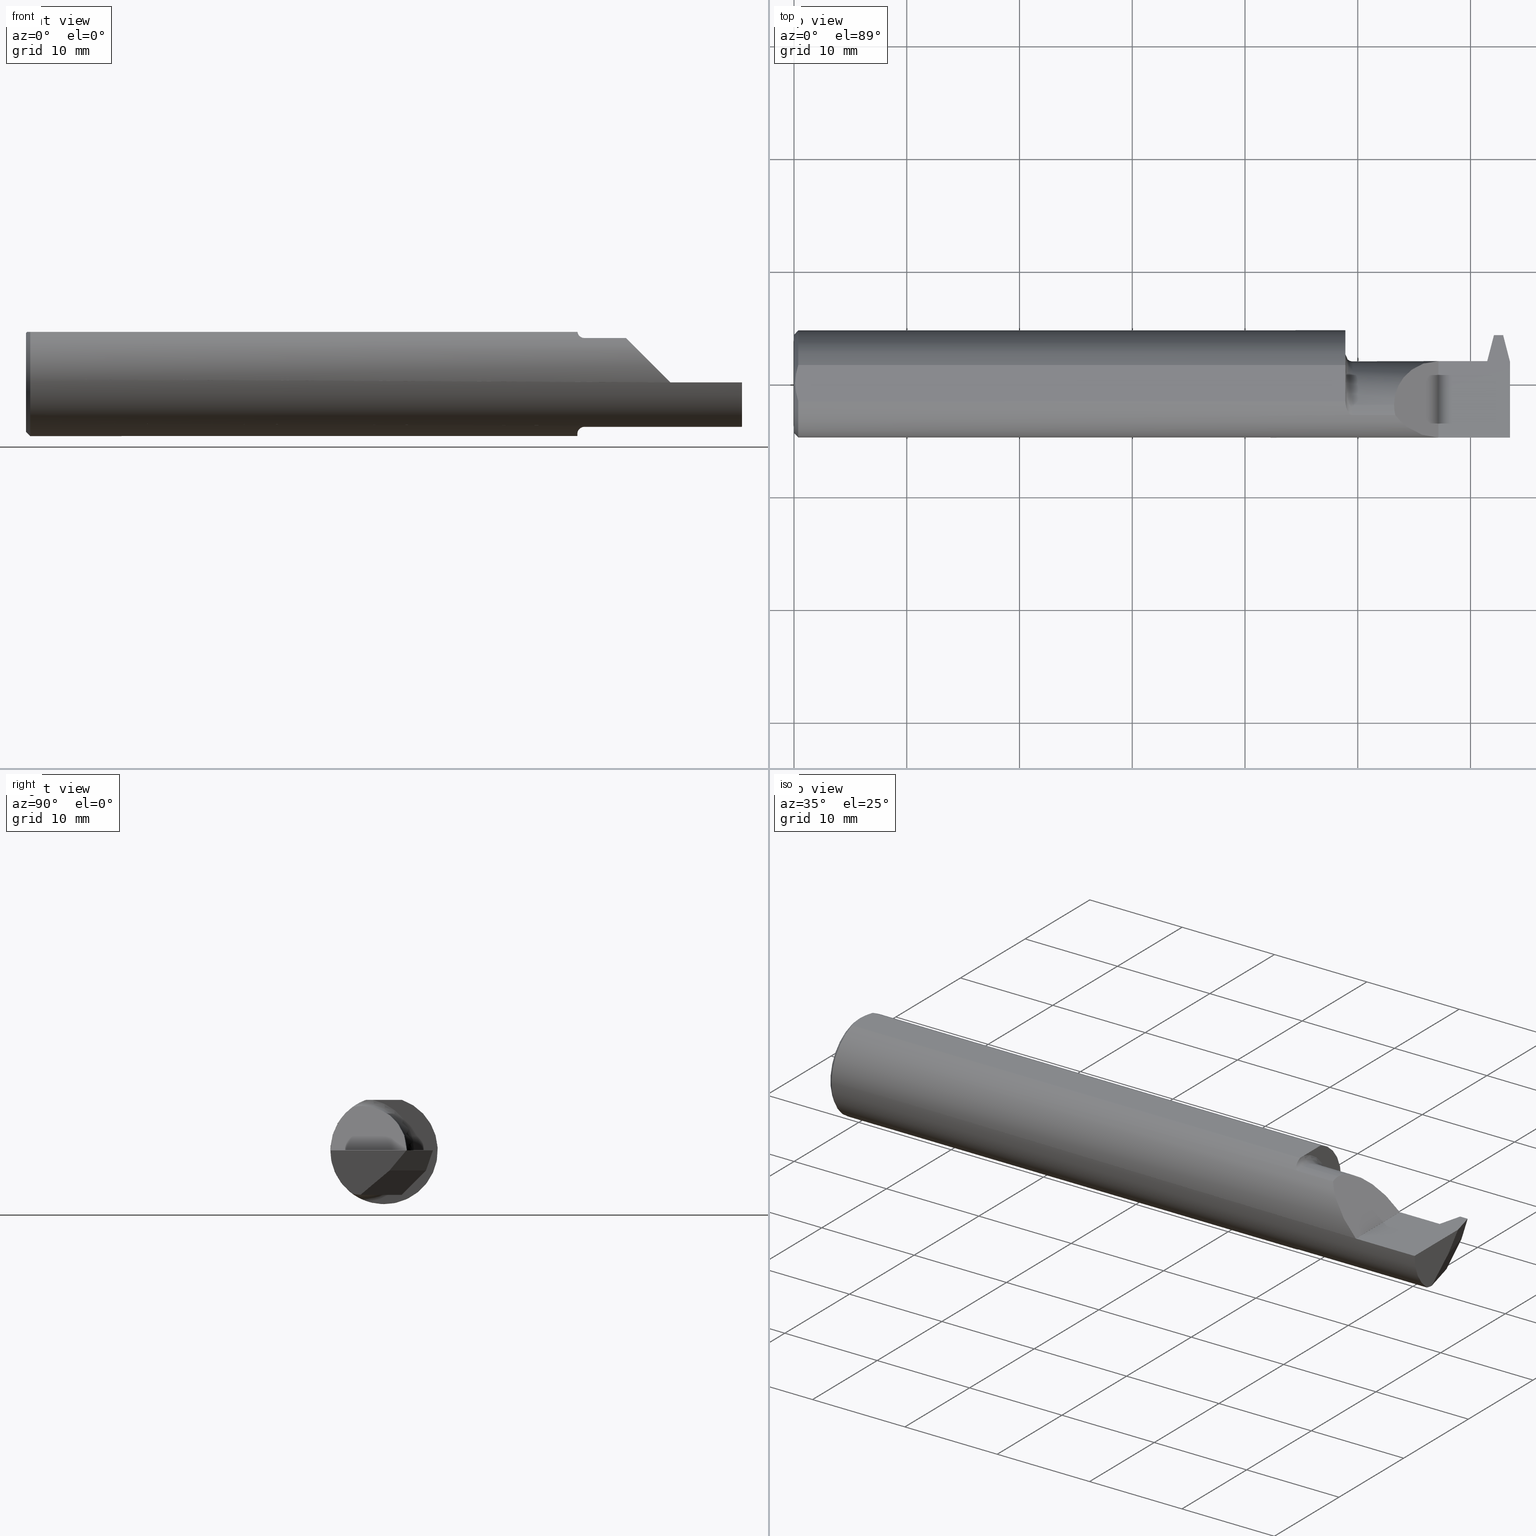
[diagram: canonical four-view strip — front | top / right | iso, engineering-drawing reading convention]
A machine part, canonical four-view strip (front | top / right | iso — engineering-drawing reading convention). The complete STEP part file that produces these views, byte-faithful:
ISO-10303-21;
HEADER;
FILE_DESCRIPTION (( 'STEP AP203' ),
    '1' );
FILE_NAME ('231036-FAT360500-10.STEP',
    '2024-05-23T22:19:01',
    ( '' ),
    ( '' ),
    'SwSTEP 2.0',
    'SolidWorks 2022',
    '' );
FILE_SCHEMA (( 'CONFIG_CONTROL_DESIGN' ));
ENDSEC;

DATA;
#1 = AXIS2_PLACEMENT_3D ( 'NONE', #265, #485, #404 ) ;
#2 = VECTOR ( 'NONE', #434, 39.37007874015748143 ) ;
#3 = FACE_OUTER_BOUND ( 'NONE', #324, .T. ) ;
#4 = CIRCLE ( 'NONE', #747, 0.1549999999999999989 ) ;
#5 = DIRECTION ( 'NONE',  ( 0.000000000000000000, 0.000000000000000000, -1.000000000000000000 ) ) ;
#6 = CARTESIAN_POINT ( 'NONE',  ( 2.250000000000000000, 0.07964960483820594794, 0.0003499999999991848933 ) ) ;
#7 = EDGE_CURVE ( 'NONE', #222, #110, #946, .T. ) ;
#8 = EDGE_CURVE ( 'NONE', #653, #728, #361, .T. ) ;
#9 = CARTESIAN_POINT ( 'NONE',  ( 2.189466948591779705, -0.1872365873764759991, 0.06088305140821962530 ) ) ;
#10 = ORIENTED_EDGE ( 'NONE', *, *, #814, .T. ) ;
#11 = CARTESIAN_POINT ( 'NONE',  ( 2.467049516675681620, 0.1465470670697277822, -0.06999999999999573230 ) ) ;
#12 = DIRECTION ( 'NONE',  ( 1.000000000000000000, 0.000000000000000000, 0.000000000000000000 ) ) ;
#13 = VERTEX_POINT ( 'NONE', #781 ) ;
#14 = ADVANCED_BREP_SHAPE_REPRESENTATION ( '231036-FAT360500-10', ( #237, #795 ), #761 ) ;
#15 = ORIENTED_EDGE ( 'NONE', *, *, #36, .F. ) ;
#16 = CARTESIAN_POINT ( 'NONE',  ( 0.01500000000000016251, -0.06325108694718359348, 0.1763499999999999790 ) ) ;
#17 = DIRECTION ( 'NONE',  ( -0.000000000000000000, 0.000000000000000000, -1.000000000000000000 ) ) ;
#18 = ORIENTED_EDGE ( 'NONE', *, *, #519, .F. ) ;
#19 = CIRCLE ( 'NONE', #507, 0.1873499999999999888 ) ;
#20 = ORIENTED_EDGE ( 'NONE', *, *, #752, .F. ) ;
#21 = CC_DESIGN_PERSON_AND_ORGANIZATION_ASSIGNMENT ( #625, #101, ( #416 ) ) ;
#22 = CARTESIAN_POINT ( 'NONE',  ( 2.419999999999999929, -0.02721703491517354218, -0.1473370885830952992 ) ) ;
#23 = CARTESIAN_POINT ( 'NONE',  ( 1.925000000000000266, -0.07535000000000005582, 0.000000000000000000 ) ) ;
#24 = EDGE_LOOP ( 'NONE', ( #113, #190, #532, #145 ) ) ;
#25 = EDGE_LOOP ( 'NONE', ( #613, #797, #218, #942, #470 ) ) ;
#26 = EDGE_CURVE ( 'NONE', #482, #708, #173, .T. ) ;
#27 = CARTESIAN_POINT ( 'NONE',  ( 1.925439896557285868, -0.06737885671737320337, 0.1748695014197203801 ) ) ;
#28 = ORIENTED_EDGE ( 'NONE', *, *, #172, .F. ) ;
#29 = DIRECTION ( 'NONE',  ( 0.000000000000000000, 0.000000000000000000, 1.000000000000000000 ) ) ;
#30 = CARTESIAN_POINT ( 'NONE',  ( 1.950000000000000178, -0.07535000000000005582, -0.1799999999999999933 ) ) ;
#31 = ORIENTED_EDGE ( 'NONE', *, *, #727, .F. ) ;
#32 = AXIS2_PLACEMENT_3D ( 'NONE', #205, #811, #354 ) ;
#33 = LINE ( 'NONE', #473, #823 ) ;
#34 = CARTESIAN_POINT ( 'NONE',  ( 1.934555280550786183, -0.1002805646452516880, 0.1583000352897936946 ) ) ;
#35 = CARTESIAN_POINT ( 'NONE',  ( 2.431847974081296826, -0.03634933712600091349, -0.1549999999999999434 ) ) ;
#36 = EDGE_CURVE ( 'NONE', #611, #90, #402, .T. ) ;
#37 = EDGE_CURVE ( 'NONE', #834, #847, #578, .T. ) ;
#38 = FACE_OUTER_BOUND ( 'NONE', #615, .T. ) ;
#39 = ORIENTED_EDGE ( 'NONE', *, *, #94, .F. ) ;
#40 = DIRECTION ( 'NONE',  ( -0.000000000000000000, 1.000000000000000000, -0.000000000000000000 ) ) ;
#41 = EDGE_LOOP ( 'NONE', ( #43, #339, #551, #320, #504, #426 ) ) ;
#42 = DIRECTION ( 'NONE',  ( 0.000000000000000000, 0.000000000000000000, 1.000000000000000000 ) ) ;
#43 = ORIENTED_EDGE ( 'NONE', *, *, #195, .F. ) ;
#44 = ORIENTED_EDGE ( 'NONE', *, *, #390, .T. ) ;
#45 = CARTESIAN_POINT ( 'NONE',  ( 2.500000000000000000, 0.06154706706972452174, -0.1549999999999999989 ) ) ;
#46 = COORDINATED_UNIVERSAL_TIME_OFFSET ( 8, 0, .BEHIND. ) ;
#47 = CIRCLE ( 'NONE', #792, 0.1549999999999999434 ) ;
#48 = VECTOR ( 'NONE', #893, 39.37007874015748143 ) ;
#49 = EDGE_CURVE ( 'NONE', #421, #764, #953, .T. ) ;
#50 = TOROIDAL_SURFACE ( 'NONE', #189, 0.1799999999999999933, 0.02500000000000000139 ) ;
#51 = CARTESIAN_POINT ( 'NONE',  ( 2.250000000000000000, 0.2000000000000000111, -4.469813191451678053E-17 ) ) ;
#52 = CONICAL_SURFACE ( 'NONE', #154, 0.1873499999999999888, 0.7853981633974437271 ) ;
#53 = DIRECTION ( 'NONE',  ( -1.000000000000000000, -0.000000000000000000, -0.000000000000000000 ) ) ;
#54 = ORIENTED_EDGE ( 'NONE', *, *, #312, .T. ) ;
#55 = CARTESIAN_POINT ( 'NONE',  ( 2.419999999999999929, 0.1080444690466967478, -0.03383921049620614713 ) ) ;
#56 = LINE ( 'NONE', #127, #715 ) ;
#57 = ORIENTED_EDGE ( 'NONE', *, *, #654, .F. ) ;
#58 = LINE ( 'NONE', #510, #491 ) ;
#59 = CARTESIAN_POINT ( 'NONE',  ( 1.925000000000000266, -0.07535000000000005582, 0.000000000000000000 ) ) ;
#60 = PERSON_AND_ORGANIZATION ( #497, #171 ) ;
#61 = ORIENTED_EDGE ( 'NONE', *, *, #812, .F. ) ;
#62 = VECTOR ( 'NONE', #827, 39.37007874015748143 ) ;
#63 = CARTESIAN_POINT ( 'NONE',  ( 0.000000000000000000, 0.000000000000000000, 0.000000000000000000 ) ) ;
#64 = VECTOR ( 'NONE', #815, 39.37007874015748143 ) ;
#65 = EDGE_CURVE ( 'NONE', #222, #110, #521, .T. ) ;
#66 = CARTESIAN_POINT ( 'NONE',  ( 2.451219831960825157, 0.1039189971471759649, -0.1938009043633889261 ) ) ;
#67 = ADVANCED_FACE ( 'NONE', ( #490 ), #194, .T. ) ;
#68 = DIRECTION ( 'NONE',  ( 0.000000000000000000, 0.000000000000000000, -1.000000000000000000 ) ) ;
#69 = DIRECTION ( 'NONE',  ( -0.9474803064293680910, -0.2450350680735338127, 0.2055210070593990190 ) ) ;
#70 = CARTESIAN_POINT ( 'NONE',  ( 1.934565425567610131, -0.1003007981862104464, -0.1582877711856871539 ) ) ;
#71 = DIRECTION ( 'NONE',  ( -1.000000000000000000, -0.000000000000000000, -0.000000000000000000 ) ) ;
#72 = DIRECTION ( 'NONE',  ( 0.000000000000000000, -0.7071067811865515695, 0.7071067811865434649 ) ) ;
#73 = CC_DESIGN_PERSON_AND_ORGANIZATION_ASSIGNMENT ( #170, #467, ( #872 ) ) ;
#74 = EDGE_LOOP ( 'NONE', ( #635, #652, #105, #665, #264, #802, #362 ) ) ;
#75 = LINE ( 'NONE', #295, #620 ) ;
#76 = ORIENTED_EDGE ( 'NONE', *, *, #49, .T. ) ;
#77 = CARTESIAN_POINT ( 'NONE',  ( 2.419999999999999929, 0.06655594585375997074, -0.06235144369900125216 ) ) ;
#78 = CIRCLE ( 'NONE', #201, 0.02500000000000000486 ) ;
#79 = VECTOR ( 'NONE', #40, 39.37007874015748143 ) ;
#80 = DIRECTION ( 'NONE',  ( 1.000000000000000000, 0.000000000000000000, 0.000000000000000000 ) ) ;
#81 = ORIENTED_EDGE ( 'NONE', *, *, #894, .F. ) ;
#82 = LINE ( 'NONE', #140, #956 ) ;
#83 = ORIENTED_EDGE ( 'NONE', *, *, #654, .T. ) ;
#84 = FACE_OUTER_BOUND ( 'NONE', #915, .T. ) ;
#85 = FACE_OUTER_BOUND ( 'NONE', #313, .T. ) ;
#86 = ORIENTED_EDGE ( 'NONE', *, *, #271, .F. ) ;
#87 = CARTESIAN_POINT ( 'NONE',  ( 0.01500000000000079568, 0.06325108694718213631, 0.1763499999999999790 ) ) ;
#88 = DIRECTION ( 'NONE',  ( 0.000000000000000000, -1.000000000000000000, 0.000000000000000000 ) ) ;
#89 = DIRECTION ( 'NONE',  ( 0.000000000000000000, 0.000000000000000000, -1.000000000000000000 ) ) ;
#90 = VERTEX_POINT ( 'NONE', #501 ) ;
#91 = CALENDAR_DATE ( 2024, 23, 5 ) ;
#92 = ORIENTED_EDGE ( 'NONE', *, *, #65, .T. ) ;
#93 = DIRECTION ( 'NONE',  ( -1.000000000000000000, -0.000000000000000000, -0.000000000000000000 ) ) ;
#94 = EDGE_CURVE ( 'NONE', #90, #242, #342, .T. ) ;
#95 = EDGE_LOOP ( 'NONE', ( #868, #81 ) ) ;
#96 = VECTOR ( 'NONE', #903, 39.37007874015748143 ) ;
#97 = ORIENTED_EDGE ( 'NONE', *, *, #782, .T. ) ;
#98 = AXIS2_PLACEMENT_3D ( 'NONE', #751, #72, #674 ) ;
#99 = DIRECTION ( 'NONE',  ( -1.000000000000000000, 2.503917738069529532E-14, 2.503917738069557616E-14 ) ) ;
#100 = DIRECTION ( 'NONE',  ( -1.000000000000000000, -0.000000000000000000, -0.000000000000000000 ) ) ;
#101 = PERSON_AND_ORGANIZATION_ROLE ( 'design_owner' ) ;
#102 = VERTEX_POINT ( 'NONE', #794 ) ;
#103 = DIRECTION ( 'NONE',  ( 0.000000000000000000, 0.000000000000000000, -1.000000000000000000 ) ) ;
#104 = DIRECTION ( 'NONE',  ( 1.000000000000000000, -0.000000000000000000, -0.000000000000000000 ) ) ;
#105 = ORIENTED_EDGE ( 'NONE', *, *, #118, .T. ) ;
#106 = CARTESIAN_POINT ( 'NONE',  ( 1.926478687487613861, -0.07534999999999991704, 0.1715295892841814940 ) ) ;
#107 = ADVANCED_FACE ( 'NONE', ( #798 ), #347, .F. ) ;
#108 = LINE ( 'NONE', #220, #684 ) ;
#109 = CARTESIAN_POINT ( 'NONE',  ( 2.500000000000000000, -0.07535000000000005582, 0.000000000000000000 ) ) ;
#110 = VERTEX_POINT ( 'NONE', #575 ) ;
#111 = CARTESIAN_POINT ( 'NONE',  ( 2.250000000000000000, 0.2000000000000000111, -4.469813191451678053E-17 ) ) ;
#112 = AXIS2_PLACEMENT_3D ( 'NONE', #146, #944, #484 ) ;
#113 = ORIENTED_EDGE ( 'NONE', *, *, #239, .T. ) ;
#114 = DIRECTION ( 'NONE',  ( 0.000000000000000000, 1.000000000000000000, -1.224646799147353207E-16 ) ) ;
#115 = ORIENTED_EDGE ( 'NONE', *, *, #403, .T. ) ;
#116 = ORIENTED_EDGE ( 'NONE', *, *, #26, .T. ) ;
#117 = PLANE ( 'NONE',  #456 ) ;
#118 = EDGE_CURVE ( 'NONE', #102, #309, #78, .T. ) ;
#119 = ORIENTED_EDGE ( 'NONE', *, *, #241, .F. ) ;
#120 = DIRECTION ( 'NONE',  ( 0.000000000000000000, 0.000000000000000000, -1.000000000000000000 ) ) ;
#121 = CARTESIAN_POINT ( 'NONE',  ( 2.500000000000000000, 0.000000000000000000, 0.000000000000000000 ) ) ;
#122 = EDGE_CURVE ( 'NONE', #373, #592, #348, .T. ) ;
#123 = EDGE_LOOP ( 'NONE', ( #626, #661, #704 ) ) ;
#124 = AXIS2_PLACEMENT_3D ( 'NONE', #63, #505, #204 ) ;
#125 = PRODUCT_DEFINITION_FORMATION_WITH_SPECIFIED_SOURCE ( 'ANY', '', #416, .NOT_KNOWN. ) ;
#126 = FACE_OUTER_BOUND ( 'NONE', #235, .T. ) ;
#127 = CARTESIAN_POINT ( 'NONE',  ( 1.925000000000000266, -0.07535000000000005582, 0.1549999999999999989 ) ) ;
#128 = ORIENTED_EDGE ( 'NONE', *, *, #283, .F. ) ;
#129 = FACE_OUTER_BOUND ( 'NONE', #864, .T. ) ;
#130 = PLANE ( 'NONE',  #203 ) ;
#131 = ORIENTED_EDGE ( 'NONE', *, *, #842, .T. ) ;
#132 = DIRECTION ( 'NONE',  ( -1.000000000000000000, -0.000000000000000000, -0.000000000000000000 ) ) ;
#133 = EDGE_CURVE ( 'NONE', #13, #834, #716, .T. ) ;
#134 = CARTESIAN_POINT ( 'NONE',  ( 1.925210246786177137, -0.06325108694718213631, 0.1763499999999999790 ) ) ;
#135 = CARTESIAN_POINT ( 'NONE',  ( 1.950000000000000178, -0.1111655275381552427, 0.1508053314281814494 ) ) ;
#136 = B_SPLINE_CURVE_WITH_KNOTS ( 'NONE', 3,
 ( #331, #496, #580, #422 ),
 .UNSPECIFIED., .F., .F.,
 ( 4, 4 ),
 ( 1.084202172485504434E-18, 0.0006087596641710211901 ),
 .UNSPECIFIED. ) ;
#137 = CARTESIAN_POINT ( 'NONE',  ( 1.931244079504314426, -0.09361870253556393850, -0.1623293170049111833 ) ) ;
#138 = VECTOR ( 'NONE', #973, 39.37007874015748143 ) ;
#139 = CIRCLE ( 'NONE', #543, 0.1799999999999999933 ) ;
#140 = CARTESIAN_POINT ( 'NONE',  ( 2.410465799823614752, 0.07964999999999991531, 0.000000000000000000 ) ) ;
#141 = FACE_OUTER_BOUND ( 'NONE', #926, .T. ) ;
#142 = CARTESIAN_POINT ( 'NONE',  ( 2.431847974081296826, 0.06494971824451233056, -0.06999999999999574618 ) ) ;
#143 = DIRECTION ( 'NONE',  ( 1.000000000000000000, 0.000000000000000000, 0.000000000000000000 ) ) ;
#144 = EDGE_CURVE ( 'NONE', #242, #383, #873, .T. ) ;
#145 = ORIENTED_EDGE ( 'NONE', *, *, #36, .T. ) ;
#146 = CARTESIAN_POINT ( 'NONE',  ( 0.000000000000000000, 0.000000000000000000, 0.000000000000000000 ) ) ;
#147 = ORIENTED_EDGE ( 'NONE', *, *, #8, .T. ) ;
#148 = CARTESIAN_POINT ( 'NONE',  ( 0.01500000000000079568, 0.000000000000000000, 0.000000000000000000 ) ) ;
#149 = ORIENTED_EDGE ( 'NONE', *, *, #585, .T. ) ;
#150 = PLANE ( 'NONE',  #152 ) ;
#151 = CARTESIAN_POINT ( 'NONE',  ( 0.01500000000000016251, -0.06325108694718359348, 0.1763499999999999790 ) ) ;
#152 = AXIS2_PLACEMENT_3D ( 'NONE', #966, #398, #558 ) ;
#153 = CARTESIAN_POINT ( 'NONE',  ( 0.01500000000000079568, 0.06325108694718213631, 0.1763499999999999790 ) ) ;
#154 = AXIS2_PLACEMENT_3D ( 'NONE', #298, #839, #68 ) ;
#155 = VERTEX_POINT ( 'NONE', #275 ) ;
#156 = ORIENTED_EDGE ( 'NONE', *, *, #162, .T. ) ;
#157 = DIRECTION ( 'NONE',  ( 1.670956516730631330E-15, -0.9786527043120508695, 0.2055210070593990190 ) ) ;
#158 = PLANE ( 'NONE',  #394 ) ;
#159 = ORIENTED_EDGE ( 'NONE', *, *, #533, .T. ) ;
#160 = ORIENTED_EDGE ( 'NONE', *, *, #621, .T. ) ;
#161 = DIRECTION ( 'NONE',  ( 0.2055210070593990190, 0.000000000000000000, 0.9786527043120508695 ) ) ;
#162 = EDGE_CURVE ( 'NONE', #184, #847, #726, .T. ) ;
#163 = APPROVAL ( #243, 'UNSPECIFIED' ) ;
#164 = ORIENTED_EDGE ( 'NONE', *, *, #666, .F. ) ;
#165 = ORIENTED_EDGE ( 'NONE', *, *, #869, .F. ) ;
#166 = CARTESIAN_POINT ( 'NONE',  ( 2.073999999999999400, 0.1000000000000000056, 0.1763499999999999790 ) ) ;
#167 = VECTOR ( 'NONE', #858, 39.37007874015748143 ) ;
#168 = CC_DESIGN_PERSON_AND_ORGANIZATION_ASSIGNMENT ( #209, #660, ( #125 ) ) ;
#169 = AXIS2_PLACEMENT_3D ( 'NONE', #230, #860, #463 ) ;
#170 = PERSON_AND_ORGANIZATION ( #497, #171 ) ;
#171 = ORGANIZATION ( 'UNSPECIFIED', 'UNSPECIFIED', '' ) ;
#172 = EDGE_CURVE ( 'NONE', #202, #326, #47, .T. ) ;
#173 =( BOUNDED_CURVE ( )  B_SPLINE_CURVE ( 3, ( #859, #329, #179, #498 ),
 .UNSPECIFIED., .F., .T. ) 
 B_SPLINE_CURVE_WITH_KNOTS ( ( 4, 4 ),
 ( 0.000000000000000000, 0.2331751639699329859 ),
 .UNSPECIFIED. ) 
 CURVE ( )  GEOMETRIC_REPRESENTATION_ITEM ( )  RATIONAL_B_SPLINE_CURVE ( ( 1.000000000000000000, 0.9954742418208948340, 0.9954742418208948340, 1.000000000000000000 ) ) 
 REPRESENTATION_ITEM ( '' )  );
#174 = EDGE_LOOP ( 'NONE', ( #281, #908, #18, #538, #689 ) ) ;
#175 = B_SPLINE_CURVE_WITH_KNOTS ( 'NONE', 3,
 ( #106, #709, #27, #483 ),
 .UNSPECIFIED., .F., .F.,
 ( 4, 4 ),
 ( 0.001294476306160001564, 0.001630041063685024744 ),
 .UNSPECIFIED. ) ;
#176 = DIRECTION ( 'NONE',  ( -0.7071067811865481278, 0.000000000000000000, -0.7071067811865470176 ) ) ;
#177 = FACE_OUTER_BOUND ( 'NONE', #24, .T. ) ;
#178 = EDGE_CURVE ( 'NONE', #228, #462, #136, .T. ) ;
#179 = CARTESIAN_POINT ( 'NONE',  ( 2.096754579645089045, -0.09941754239787796432, 0.1535954203549101948 ) ) ;
#180 = ADVANCED_FACE ( 'NONE', ( #640 ), #117, .F. ) ;
#181 = CARTESIAN_POINT ( 'NONE',  ( 2.401513823449298979, 0.07522230237091669103, -0.04262764187959418305 ) ) ;
#182 = DIRECTION ( 'NONE',  ( 0.000000000000000000, 0.000000000000000000, -1.000000000000000000 ) ) ;
#183 = CARTESIAN_POINT ( 'NONE',  ( 2.444685452976455675, 0.1733004499999999115, 0.000000000000000000 ) ) ;
#184 = VERTEX_POINT ( 'NONE', #35 ) ;
#185 = CARTESIAN_POINT ( 'NONE',  ( 1.925471628390130530, -0.06898398245409141649, -0.1743260713610383095 ) ) ;
#186 = CARTESIAN_POINT ( 'NONE',  ( 2.135462471271803331, -0.1598910295916955993, 0.1148875287281965335 ) ) ;
#187 = CARTESIAN_POINT ( 'NONE',  ( 2.419999999999999929, 0.07964999999999992919, 0.000000000000000000 ) ) ;
#188 = VERTEX_POINT ( 'NONE', #949 ) ;
#189 = AXIS2_PLACEMENT_3D ( 'NONE', #322, #927, #103 ) ;
#190 = ORIENTED_EDGE ( 'NONE', *, *, #247, .F. ) ;
#191 = DIRECTION ( 'NONE',  ( -1.000000000000000000, 0.000000000000000000, 0.000000000000000000 ) ) ;
#192 = CARTESIAN_POINT ( 'NONE',  ( 2.419999999999999929, 0.1052379327999176384, -0.1550000000000000266 ) ) ;
#193 = ORIENTED_EDGE ( 'NONE', *, *, #629, .F. ) ;
#194 = PLANE ( 'NONE',  #637 ) ;
#195 = EDGE_CURVE ( 'NONE', #772, #886, #566, .T. ) ;
#196 = SECURITY_CLASSIFICATION_LEVEL ( 'unclassified' ) ;
#197 = ORIENTED_EDGE ( 'NONE', *, *, #581, .F. ) ;
#198 = APPLICATION_CONTEXT ( 'configuration controlled 3d designs of mechanical parts and assemblies' ) ;
#199 = CARTESIAN_POINT ( 'NONE',  ( 2.500000000000000000, -0.1873500000000000165, -4.469813191451678053E-17 ) ) ;
#200 = APPROVAL_STATUS ( 'not_yet_approved' ) ;
#201 = AXIS2_PLACEMENT_3D ( 'NONE', #30, #721, #120 ) ;
#202 = VERTEX_POINT ( 'NONE', #420 ) ;
#203 = AXIS2_PLACEMENT_3D ( 'NONE', #663, #678, #741 ) ;
#204 = DIRECTION ( 'NONE',  ( 0.000000000000000000, 0.000000000000000000, -1.000000000000000000 ) ) ;
#205 = CARTESIAN_POINT ( 'NONE',  ( 2.419999999999999929, -0.07535000000000005582, 0.000000000000000000 ) ) ;
#206 = PERSON_AND_ORGANIZATION ( #497, #171 ) ;
#207 = ADVANCED_FACE ( 'NONE', ( #177 ), #941, .T. ) ;
#208 = DIRECTION ( 'NONE',  ( 0.000000000000000000, -0.7660444431189792347, -0.6427876096865379196 ) ) ;
#209 = PERSON_AND_ORGANIZATION ( #497, #171 ) ;
#210 = LINE ( 'NONE', #310, #475 ) ;
#211 = CARTESIAN_POINT ( 'NONE',  ( 2.500000000000000000, -0.06325108694718213631, 0.1763499999999999790 ) ) ;
#212 = LINE ( 'NONE', #826, #731 ) ;
#213 = CARTESIAN_POINT ( 'NONE',  ( 2.250000000000000000, 0.07964960483820594794, 0.0003499999999991848933 ) ) ;
#214 = AXIS2_PLACEMENT_3D ( 'NONE', #523, #69, #818 ) ;
#215 = ADVANCED_FACE ( 'NONE', ( #572 ), #867, .T. ) ;
#216 = LINE ( 'NONE', #892, #809 ) ;
#217 = LINE ( 'NONE', #227, #843 ) ;
#218 = ORIENTED_EDGE ( 'NONE', *, *, #285, .T. ) ;
#219 = DIRECTION ( 'NONE',  ( 1.000000000000000000, 0.000000000000000000, 0.000000000000000000 ) ) ;
#220 = CARTESIAN_POINT ( 'NONE',  ( 2.172500000000000320, -0.1111655275381552427, 0.1508053314281814494 ) ) ;
#221 = B_SPLINE_CURVE_WITH_KNOTS ( 'NONE', 3,
 ( #87, #604, #385, #688 ),
 .UNSPECIFIED., .F., .F.,
 ( 4, 4 ),
 ( 0.003872958501701110473, 0.005496776235116787243 ),
 .UNSPECIFIED. ) ;
#222 = VERTEX_POINT ( 'NONE', #282 ) ;
#223 = ORIENTED_EDGE ( 'NONE', *, *, #814, .F. ) ;
#224 = CARTESIAN_POINT ( 'NONE',  ( 2.500000000000000000, 0.07784888572242860960, 0.000000000000000000 ) ) ;
#225 = CARTESIAN_POINT ( 'NONE',  ( 1.936565098989693423, -0.1034641170928918136, 0.1562236412899350446 ) ) ;
#226 = VERTEX_POINT ( 'NONE', #734 ) ;
#227 = CARTESIAN_POINT ( 'NONE',  ( 1.925000000000000266, 0.07964999999999992919, -4.469813191451678053E-17 ) ) ;
#228 = VERTEX_POINT ( 'NONE', #134 ) ;
#229 = EDGE_CURVE ( 'NONE', #886, #611, #359, .T. ) ;
#230 = CARTESIAN_POINT ( 'NONE',  ( 1.925000000000000266, -0.07535000000000005582, 0.000000000000000000 ) ) ;
#231 = AXIS2_PLACEMENT_3D ( 'NONE', #183, #655, #955 ) ;
#232 = AXIS2_PLACEMENT_3D ( 'NONE', #121, #53, #935 ) ;
#233 = LINE ( 'NONE', #612, #287 ) ;
#234 = LOCAL_TIME ( 15, 19, 1.000000000000000000, #478 ) ;
#235 = EDGE_LOOP ( 'NONE', ( #159, #619, #912 ) ) ;
#236 = DIRECTION ( 'NONE',  ( 0.000000000000000000, -0.7660444431189792347, -0.6427876096865379196 ) ) ;
#237 = MANIFOLD_SOLID_BREP ( 'Cut-Sweep1', #540 ) ;
#238 = ORIENTED_EDGE ( 'NONE', *, *, #49, .F. ) ;
#239 = EDGE_CURVE ( 'NONE', #90, #184, #58, .T. ) ;
#240 = FACE_OUTER_BOUND ( 'NONE', #123, .T. ) ;
#241 = EDGE_CURVE ( 'NONE', #772, #468, #278, .T. ) ;
#242 = VERTEX_POINT ( 'NONE', #753 ) ;
#243 = APPROVAL_STATUS ( 'not_yet_approved' ) ;
#244 = VERTEX_POINT ( 'NONE', #199 ) ;
#245 = DIRECTION ( 'NONE',  ( 0.000000000000000000, -0.2055210070593990190, -0.9786527043120508695 ) ) ;
#246 = DIRECTION ( 'NONE',  ( -0.2503800040544378325, 0.9681476403781086315, -5.540024868260879370E-16 ) ) ;
#247 = EDGE_CURVE ( 'NONE', #886, #184, #75, .T. ) ;
#248 = VERTEX_POINT ( 'NONE', #518 ) ;
#249 = CARTESIAN_POINT ( 'NONE',  ( 0.01500000000000079568, 0.000000000000000000, 0.000000000000000000 ) ) ;
#250 = CARTESIAN_POINT ( 'NONE',  ( 2.416847974081296702, 0.06494971824451233056, -0.06999999999999574618 ) ) ;
#251 = VECTOR ( 'NONE', #268, 39.37007874015748143 ) ;
#252 = CONICAL_SURFACE ( 'NONE', #746, 0.1873499999999999888, 0.7853981633974437271 ) ;
#253 = ADVANCED_FACE ( 'NONE', ( #129 ), #375, .F. ) ;
#254 = LOCAL_TIME ( 15, 19, 1.000000000000000000, #46 ) ;
#255 = ORIENTED_EDGE ( 'NONE', *, *, #533, .F. ) ;
#256 = PLANE ( 'NONE',  #590 ) ;
#257 = CARTESIAN_POINT ( 'NONE',  ( 0.000000000000000000, 0.000000000000000000, -0.1723499999999993371 ) ) ;
#258 = CARTESIAN_POINT ( 'NONE',  ( 2.431847974081296826, 0.06494971824451233056, -0.06999999999999574618 ) ) ;
#259 = EDGE_LOOP ( 'NONE', ( #791, #777 ) ) ;
#260 = LINE ( 'NONE', #111, #79 ) ;
#261 = CARTESIAN_POINT ( 'NONE',  ( 1.950000000000000178, -0.07535000000000005582, 0.000000000000000000 ) ) ;
#262 = DIRECTION ( 'NONE',  ( 1.000000000000000000, 0.000000000000000000, 0.000000000000000000 ) ) ;
#263 = ORIENTED_EDGE ( 'NONE', *, *, #343, .T. ) ;
#264 = ORIENTED_EDGE ( 'NONE', *, *, #799, .F. ) ;
#265 = CARTESIAN_POINT ( 'NONE',  ( 2.416847974081296702, -0.07535000000000005582, 0.000000000000000000 ) ) ;
#266 = PRODUCT_DEFINITION_SHAPE ( 'NONE', 'NONE',  #872 ) ;
#267 = DIRECTION ( 'NONE',  ( 0.2503800040544337246, -0.9681476403781097417, 0.000000000000000000 ) ) ;
#268 = DIRECTION ( 'NONE',  ( -0.000000000000000000, 1.000000000000000000, -5.672820889749761672E-16 ) ) ;
#269 = SHAPE_DEFINITION_REPRESENTATION ( #266, #14 ) ;
#270 = AXIS2_PLACEMENT_3D ( 'NONE', #480, #783, #29 ) ;
#271 = EDGE_CURVE ( 'NONE', #772, #951, #357, .T. ) ;
#272 = AXIS2_PLACEMENT_3D ( 'NONE', #691, #12, #89 ) ;
#273 = ORIENTED_EDGE ( 'NONE', *, *, #368, .F. ) ;
#274 = APPLICATION_CONTEXT ( 'configuration controlled 3d designs of mechanical parts and assemblies' ) ;
#275 = CARTESIAN_POINT ( 'NONE',  ( 2.397371745677374655, 0.06655594585375991523, -0.06235144369900134237 ) ) ;
#276 = APPROVAL_DATE_TIME ( #503, #388 ) ;
#277 = VERTEX_POINT ( 'NONE', #744 ) ;
#278 = LINE ( 'NONE', #438, #62 ) ;
#279 =( BOUNDED_CURVE ( )  B_SPLINE_CURVE ( 3, ( #6, #767, #307, #685 ),
 .UNSPECIFIED., .F., .F. ) 
 B_SPLINE_CURVE_WITH_KNOTS ( ( 4, 4 ),
 ( 4.714647046819741227, 6.283185307179586232 ),
 .UNSPECIFIED. ) 
 CURVE ( )  GEOMETRIC_REPRESENTATION_ITEM ( )  RATIONAL_B_SPLINE_CURVE ( ( 1.000000000000000000, 0.8052697849207437475, 0.8052697849207437475, 1.000000000000000000 ) ) 
 REPRESENTATION_ITEM ( '' )  );
#280 = DIRECTION ( 'NONE',  ( -1.000000000000000000, -0.000000000000000000, -0.000000000000000000 ) ) ;
#281 = ORIENTED_EDGE ( 'NONE', *, *, #172, .T. ) ;
#282 = CARTESIAN_POINT ( 'NONE',  ( 2.416847974081296702, 0.06139050547019225812, -0.07298653412620917380 ) ) ;
#283 = EDGE_CURVE ( 'NONE', #796, #277, #920, .T. ) ;
#284 = LINE ( 'NONE', #750, #855 ) ;
#285 = EDGE_CURVE ( 'NONE', #383, #965, #962, .T. ) ;
#286 = ORIENTED_EDGE ( 'NONE', *, *, #239, .F. ) ;
#287 = VECTOR ( 'NONE', #465, 39.37007874015748143 ) ;
#288 = CARTESIAN_POINT ( 'NONE',  ( 1.925000000000000266, 0.2796499999999999542, 0.000000000000000000 ) ) ;
#289 = CARTESIAN_POINT ( 'NONE',  ( 2.420465799823614539, 0.07964999999999992919, 0.000000000000000000 ) ) ;
#290 = PERSON_AND_ORGANIZATION ( #497, #171 ) ;
#291 = ORIENTED_EDGE ( 'NONE', *, *, #271, .T. ) ;
#292 = CARTESIAN_POINT ( 'NONE',  ( 1.927865082443893430, -0.08283314709417988198, -0.1680932348365286877 ) ) ;
#293 = FACE_OUTER_BOUND ( 'NONE', #936, .T. ) ;
#294 = DIRECTION ( 'NONE',  ( 0.000000000000000000, 0.000000000000000000, -1.000000000000000000 ) ) ;
#295 = CARTESIAN_POINT ( 'NONE',  ( 2.431847974081296826, 0.06494971824451233056, -0.06999999999999574618 ) ) ;
#296 = EDGE_CURVE ( 'NONE', #924, #650, #601, .T. ) ;
#297 = DIRECTION ( 'NONE',  ( 0.000000000000000000, 0.000000000000000000, 1.000000000000000000 ) ) ;
#298 = CARTESIAN_POINT ( 'NONE',  ( 0.01500000000000079568, 0.000000000000000000, 0.000000000000000000 ) ) ;
#299 = FACE_OUTER_BOUND ( 'NONE', #346, .T. ) ;
#300 = ADVANCED_FACE ( 'NONE', ( #881 ), #879, .T. ) ;
#301 = CC_DESIGN_APPROVAL ( #388, ( #732 ) ) ;
#302 = PRODUCT_RELATED_PRODUCT_CATEGORY ( 'detail', '', ( #416 ) ) ;
#303 = CARTESIAN_POINT ( 'NONE',  ( 1.950000000000000178, -0.07535000000000005582, 0.000000000000000000 ) ) ;
#304 = DIRECTION ( 'NONE',  ( 1.000000000000000000, -0.000000000000000000, -0.000000000000000000 ) ) ;
#305 = ORIENTED_EDGE ( 'NONE', *, *, #768, .F. ) ;
#306 = LINE ( 'NONE', #909, #576 ) ;
#307 = CARTESIAN_POINT ( 'NONE',  ( 2.095349999999998936, 0.01528441802401257592, 0.1550000000000000266 ) ) ;
#308 = CARTESIAN_POINT ( 'NONE',  ( 2.500000000000000000, 0.1052379327999176384, -0.1550000000000000266 ) ) ;
#309 = VERTEX_POINT ( 'NONE', #808 ) ;
#310 = CARTESIAN_POINT ( 'NONE',  ( 0.01500000000000079568, 2.294375778202566330E-17, 0.1873499999999999888 ) ) ;
#311 = CARTESIAN_POINT ( 'NONE',  ( 2.419999999999999929, -0.03634933712600091349, -0.1549999999999999434 ) ) ;
#312 = EDGE_CURVE ( 'NONE', #228, #421, #967, .T. ) ;
#313 = EDGE_LOOP ( 'NONE', ( #712, #486, #958 ) ) ;
#314 =( NAMED_UNIT ( * ) SI_UNIT ( $, .STERADIAN. ) SOLID_ANGLE_UNIT ( ) );
#315 = ORIENTED_EDGE ( 'NONE', *, *, #607, .T. ) ;
#316 = DIRECTION ( 'NONE',  ( -0.7071067811865469066, 0.000000000000000000, 0.7071067811865480168 ) ) ;
#317 = VECTOR ( 'NONE', #246, 39.37007874015748143 ) ;
#318 = CARTESIAN_POINT ( 'NONE',  ( 1.929954557781144775, -0.09009039404888789793, 0.1643178600608700690 ) ) ;
#319 = CC_DESIGN_SECURITY_CLASSIFICATION ( #732, ( #125 ) ) ;
#320 = ORIENTED_EDGE ( 'NONE', *, *, #894, .T. ) ;
#321 = ORIENTED_EDGE ( 'NONE', *, *, #976, .T. ) ;
#322 = CARTESIAN_POINT ( 'NONE',  ( 1.950000000000000178, -0.07535000000000005582, 0.000000000000000000 ) ) ;
#323 =( BOUNDED_CURVE ( )  B_SPLINE_CURVE ( 3, ( #634, #181, #773, #392 ),
 .UNSPECIFIED., .F., .F. ) 
 B_SPLINE_CURVE_WITH_KNOTS ( ( 4, 4 ),
 ( 1.156804228221840036, 1.570796326794896780 ),
 .UNSPECIFIED. ) 
 CURVE ( )  GEOMETRIC_REPRESENTATION_ITEM ( )  RATIONAL_B_SPLINE_CURVE ( ( 1.000000000000000000, 0.9857684695413670983, 0.9857684695413670983, 1.000000000000000000 ) ) 
 REPRESENTATION_ITEM ( '' )  );
#324 = EDGE_LOOP ( 'NONE', ( #981, #352, #785, #633, #286, #649 ) ) ;
#325 = APPROVAL_ROLE ( '' ) ;
#326 = VERTEX_POINT ( 'NONE', #895 ) ;
#327 = CARTESIAN_POINT ( 'NONE',  ( 2.419999999999999929, 0.07964999999999992919, 0.000000000000000000 ) ) ;
#328 = ADVANCED_FACE ( 'NONE', ( #126 ), #430, .T. ) ;
#329 = CARTESIAN_POINT ( 'NONE',  ( 2.095349999999999380, -0.08742475677085130570, 0.1550000000000000266 ) ) ;
#330 = FACE_OUTER_BOUND ( 'NONE', #74, .T. ) ;
#331 = CARTESIAN_POINT ( 'NONE',  ( 1.925210246786177137, -0.06325108694718213631, 0.1763499999999999790 ) ) ;
#332 = VECTOR ( 'NONE', #561, 39.37007874015748143 ) ;
#333 = CIRCLE ( 'NONE', #882, 0.1549999999999999989 ) ;
#334 = APPROVAL_PERSON_ORGANIZATION ( #771, #163, #325 ) ;
#335 = VERTEX_POINT ( 'NONE', #213 ) ;
#336 = PLANE ( 'NONE',  #112 ) ;
#337 = DIRECTION ( 'NONE',  ( 0.9277270166603241996, 0.2399265199903860279, -0.2859332921571702268 ) ) ;
#338 = CARTESIAN_POINT ( 'NONE',  ( 2.250000000000000000, -0.1873499999999999888, -4.469813191451678053E-17 ) ) ;
#339 = ORIENTED_EDGE ( 'NONE', *, *, #241, .T. ) ;
#340 = CARTESIAN_POINT ( 'NONE',  ( 1.925000000000000266, -0.05559153948241538773, -0.1789122780526117285 ) ) ;
#341 = ORIENTED_EDGE ( 'NONE', *, *, #699, .F. ) ;
#342 = LINE ( 'NONE', #45, #897 ) ;
#343 = EDGE_CURVE ( 'NONE', #309, #188, #804, .T. ) ;
#344 = ORIENTED_EDGE ( 'NONE', *, *, #842, .F. ) ;
#345 = EDGE_CURVE ( 'NONE', #13, #242, #928, .T. ) ;
#346 = EDGE_LOOP ( 'NONE', ( #932, #921, #83, #563 ) ) ;
#347 = PLANE ( 'NONE',  #231 ) ;
#348 = CIRCLE ( 'NONE', #758, 0.02500000000000000486 ) ;
#349 = AXIS2_PLACEMENT_3D ( 'NONE', #552, #397, #854 ) ;
#350 = AXIS2_PLACEMENT_3D ( 'NONE', #933, #849, #161 ) ;
#351 = CIRCLE ( 'NONE', #477, 0.1873499999999999888 ) ;
#352 = ORIENTED_EDGE ( 'NONE', *, *, #133, .T. ) ;
#353 = DIRECTION ( 'NONE',  ( 0.000000000000000000, 0.000000000000000000, 1.000000000000000000 ) ) ;
#354 = DIRECTION ( 'NONE',  ( 0.000000000000000000, 0.000000000000000000, 1.000000000000000000 ) ) ;
#355 = ORIENTED_EDGE ( 'NONE', *, *, #439, .F. ) ;
#356 = ADVANCED_FACE ( 'NONE', ( #84 ), #450, .T. ) ;
#357 = LINE ( 'NONE', #55, #542 ) ;
#358 = ORIENTED_EDGE ( 'NONE', *, *, #455, .F. ) ;
#359 = LINE ( 'NONE', #142, #729 ) ;
#360 = CARTESIAN_POINT ( 'NONE',  ( 1.950000000000000178, -0.07535000000000005582, 0.000000000000000000 ) ) ;
#361 = CIRCLE ( 'NONE', #349, 0.1873499999999999888 ) ;
#362 = ORIENTED_EDGE ( 'NONE', *, *, #476, .F. ) ;
#363 = AXIS2_PLACEMENT_3D ( 'NONE', #680, #132, #294 ) ;
#364 = CARTESIAN_POINT ( 'NONE',  ( 1.950000000000000178, -0.07535000000000005582, 0.1549999999999999989 ) ) ;
#365 = APPROVAL_PERSON_ORGANIZATION ( #60, #526, #736 ) ;
#366 = CARTESIAN_POINT ( 'NONE',  ( 2.459999999999999964, 0.1738055255122935572, -0.06999999999999574618 ) ) ;
#367 = LINE ( 'NONE', #289, #969 ) ;
#368 = EDGE_CURVE ( 'NONE', #335, #482, #279, .T. ) ;
#369 = CARTESIAN_POINT ( 'NONE',  ( 1.925000000000000044, 0.06655594585375837480, -0.06235144369900487427 ) ) ;
#370 = CARTESIAN_POINT ( 'NONE',  ( 1.936554031168355783, -0.1034518926464918220, -0.1562319468430166391 ) ) ;
#371 = LINE ( 'NONE', #980, #825 ) ;
#372 = EDGE_CURVE ( 'NONE', #13, #326, #447, .T. ) ;
#373 = VERTEX_POINT ( 'NONE', #364 ) ;
#374 = CARTESIAN_POINT ( 'NONE',  ( 2.419999999999999929, -0.07535000000000005582, 0.000000000000000000 ) ) ;
#375 = PLANE ( 'NONE',  #968 ) ;
#376 = LINE ( 'NONE', #910, #717 ) ;
#377 = CARTESIAN_POINT ( 'NONE',  ( 2.419999999999999929, 0.06139050547019226506, -0.07298653412620918768 ) ) ;
#378 =( BOUNDED_CURVE ( )  B_SPLINE_CURVE ( 3, ( #571, #9, #186, #489 ),
 .UNSPECIFIED., .F., .T. ) 
 B_SPLINE_CURVE_WITH_KNOTS ( ( 4, 4 ),
 ( 4.714257142666966161, 5.647961724597865718 ),
 .UNSPECIFIED. ) 
 CURVE ( )  GEOMETRIC_REPRESENTATION_ITEM ( )  RATIONAL_B_SPLINE_CURVE ( ( 1.000000000000000000, 0.9286596154903572486, 0.9286596154903572486, 1.000000000000000000 ) ) 
 REPRESENTATION_ITEM ( '' )  );
#379 = EDGE_LOOP ( 'NONE', ( #412, #452, #156, #164, #700, #789, #358, #86 ) ) ;
#380 = CIRCLE ( 'NONE', #840, 0.1549999999999999989 ) ;
#381 = ORIENTED_EDGE ( 'NONE', *, *, #455, .T. ) ;
#382 = DIRECTION ( 'NONE',  ( 1.000000000000000000, 0.000000000000000000, 0.000000000000000000 ) ) ;
#383 = VERTEX_POINT ( 'NONE', #11 ) ;
#384 = ORIENTED_EDGE ( 'NONE', *, *, #668, .F. ) ;
#385 = CARTESIAN_POINT ( 'NONE',  ( 0.004000000000000698309, 0.02174349820064850128, 0.1763499999999999790 ) ) ;
#386 = CARTESIAN_POINT ( 'NONE',  ( 1.925000000000000266, -0.07535000000000004194, -0.1549999999999999989 ) ) ;
#387 = CARTESIAN_POINT ( 'NONE',  ( 2.250000000000000000, 0.2000000000000000111, -4.469813191451678053E-17 ) ) ;
#388 = APPROVAL ( #200, 'UNSPECIFIED' ) ;
#389 = ORIENTED_EDGE ( 'NONE', *, *, #585, .F. ) ;
#390 = EDGE_CURVE ( 'NONE', #277, #391, #210, .T. ) ;
#391 = VERTEX_POINT ( 'NONE', #836 ) ;
#392 = CARTESIAN_POINT ( 'NONE',  ( 2.410465799823614752, 0.07964999999999991531, 0.000000000000000000 ) ) ;
#393 = VECTOR ( 'NONE', #93, 39.37007874015748143 ) ;
#394 = AXIS2_PLACEMENT_3D ( 'NONE', #387, #17, #913 ) ;
#395 = ORIENTED_EDGE ( 'NONE', *, *, #368, .T. ) ;
#396 = DIRECTION ( 'NONE',  ( 1.000000000000000000, 0.000000000000000000, 0.000000000000000000 ) ) ;
#397 = DIRECTION ( 'NONE',  ( -1.000000000000000000, -0.000000000000000000, -0.000000000000000000 ) ) ;
#398 = DIRECTION ( 'NONE',  ( -1.552304856221520655E-14, -0.9455185755993168462, 0.3255681544571566444 ) ) ;
#399 = EDGE_CURVE ( 'NONE', #226, #650, #306, .T. ) ;
#400 = CARTESIAN_POINT ( 'NONE',  ( 2.095349999999999380, -0.07535000000000005582, 0.1549999999999999989 ) ) ;
#401 = DATE_AND_TIME ( #931, #857 ) ;
#402 = LINE ( 'NONE', #801, #436 ) ;
#403 = EDGE_CURVE ( 'NONE', #611, #650, #748, .T. ) ;
#404 = DIRECTION ( 'NONE',  ( 0.000000000000000000, 1.762482576557589218E-15, -1.000000000000000000 ) ) ;
#405 = EDGE_LOOP ( 'NONE', ( #389, #494, #583, #28, #743, #609 ) ) ;
#406 = CARTESIAN_POINT ( 'NONE',  ( 2.500000000000000000, 0.04569972933712732749, -0.03833024582787391416 ) ) ;
#407 = DIRECTION ( 'NONE',  ( 0.7071067811865507924, 0.000000000000000000, -0.7071067811865443531 ) ) ;
#408 = CARTESIAN_POINT ( 'NONE',  ( 1.950000000000000178, -0.07535000000000002807, 0.1799999999999999933 ) ) ;
#409 = CIRCLE ( 'NONE', #524, 0.1873499999999999888 ) ;
#410 = ORIENTED_EDGE ( 'NONE', *, *, #65, .F. ) ;
#411 = CARTESIAN_POINT ( 'NONE',  ( 2.452950483324317865, 0.1465470670697238686, -0.06999999999999967359 ) ) ;
#412 = ORIENTED_EDGE ( 'NONE', *, *, #195, .T. ) ;
#413 = CARTESIAN_POINT ( 'NONE',  ( 0.01500000000000079568, 0.000000000000000000, 0.000000000000000000 ) ) ;
#414 = ADVANCED_FACE ( 'NONE', ( #299 ), #671, .F. ) ;
#415 = EDGE_CURVE ( 'NONE', #277, #796, #667, .T. ) ;
#416 = PRODUCT ( '231036-FAT360500-10', '231036-FAT360500-10', '', ( #632 ) ) ;
#417 = CARTESIAN_POINT ( 'NONE',  ( 2.475314547023544254, 0.1733004499999999115, 0.000000000000000000 ) ) ;
#418 = ORIENTED_EDGE ( 'NONE', *, *, #812, .T. ) ;
#419 = ORIENTED_EDGE ( 'NONE', *, *, #723, .T. ) ;
#420 = CARTESIAN_POINT ( 'NONE',  ( 2.500000000000000000, -0.1111655275381552010, -0.1508053314281814494 ) ) ;
#421 = VERTEX_POINT ( 'NONE', #151 ) ;
#422 = CARTESIAN_POINT ( 'NONE',  ( 1.925000000000000266, -0.03928509323455842139, 0.1763499999999999790 ) ) ;
#423 = VECTOR ( 'NONE', #829, 39.37007874015748854 ) ;
#424 = CALENDAR_DATE ( 2024, 23, 5 ) ;
#425 = AXIS2_PLACEMENT_3D ( 'NONE', #308, #763, #866 ) ;
#426 = ORIENTED_EDGE ( 'NONE', *, *, #934, .F. ) ;
#427 = DIRECTION ( 'NONE',  ( -1.000000000000000000, 0.000000000000000000, -0.000000000000000000 ) ) ;
#428 = LINE ( 'NONE', #66, #423 ) ;
#429 = VERTEX_POINT ( 'NONE', #224 ) ;
#430 = PLANE ( 'NONE',  #623 ) ;
#431 = EDGE_LOOP ( 'NONE', ( #546, #718, #20 ) ) ;
#432 = DIRECTION ( 'NONE',  ( 0.7071067811865507924, 8.659560562354894648E-17, 0.7071067811865443531 ) ) ;
#433 = DIRECTION ( 'NONE',  ( 0.000000000000000000, -0.7660444431189792347, -0.6427876096865379196 ) ) ;
#434 = DIRECTION ( 'NONE',  ( -1.000000000000000000, -0.000000000000000000, -0.000000000000000000 ) ) ;
#435 = CARTESIAN_POINT ( 'NONE',  ( 2.476000000000000423, 0.1706499999999999406, 0.000000000000000000 ) ) ;
#436 = VECTOR ( 'NONE', #874, 39.37007874015748143 ) ;
#437 = VECTOR ( 'NONE', #267, 39.37007874015748143 ) ;
#438 = CARTESIAN_POINT ( 'NONE',  ( 2.419999999999999929, 0.07964999999999992919, 1.599634224821289854E-19 ) ) ;
#439 = EDGE_CURVE ( 'NONE', #468, #155, #536, .T. ) ;
#440 = CARTESIAN_POINT ( 'NONE',  ( 2.500000000000000000, 0.000000000000000000, 0.000000000000000000 ) ) ;
#441 = EDGE_CURVE ( 'NONE', #817, #851, #676, .T. ) ;
#442 = DIRECTION ( 'NONE',  ( 0.2013133534504512601, 0.2013133534504515931, 0.9586166425871539554 ) ) ;
#443 = CARTESIAN_POINT ( 'NONE',  ( 2.416847974081296702, 0.06494971824451233056, -0.06999999999999574618 ) ) ;
#444 = DIRECTION ( 'NONE',  ( 0.2503800040544348904, 0.9681476403781094087, 0.000000000000000000 ) ) ;
#445 = DIRECTION ( 'NONE',  ( 1.000000000000000000, 0.000000000000000000, 0.000000000000000000 ) ) ;
#446 = APPLICATION_PROTOCOL_DEFINITION ( 'international standard', 'config_control_design', 1994, #274 ) ;
#447 =( BOUNDED_CURVE ( )  B_SPLINE_CURVE ( 3, ( #530, #513, #690, #890 ),
 .UNSPECIFIED., .F., .F. ) 
 B_SPLINE_CURVE_WITH_KNOTS ( ( 4, 4 ),
 ( 0.6981317007977293487, 0.7409987552670027622 ),
 .UNSPECIFIED. ) 
 CURVE ( )  GEOMETRIC_REPRESENTATION_ITEM ( )  RATIONAL_B_SPLINE_CURVE ( ( 1.000000000000000000, 0.9998468738323588179, 0.9998468738323588179, 1.000000000000000000 ) ) 
 REPRESENTATION_ITEM ( '' )  );
#448 = EDGE_LOOP ( 'NONE', ( #918, #906, #606, #720 ) ) ;
#449 = DIRECTION ( 'NONE',  ( 0.000000000000000000, 0.000000000000000000, -1.000000000000000000 ) ) ;
#450 = CYLINDRICAL_SURFACE ( 'NONE', #793, 0.1549999999999999989 ) ;
#451 = FACE_OUTER_BOUND ( 'NONE', #431, .T. ) ;
#452 = ORIENTED_EDGE ( 'NONE', *, *, #247, .T. ) ;
#453 = LENGTH_MEASURE_WITH_UNIT ( LENGTH_MEASURE( 0.02539999999999999897 ), #528 );
#454 = ORIENTED_EDGE ( 'NONE', *, *, #668, .T. ) ;
#455 = EDGE_CURVE ( 'NONE', #951, #222, #212, .T. ) ;
#456 = AXIS2_PLACEMENT_3D ( 'NONE', #51, #658, #651 ) ;
#457 = PLANE ( 'NONE',  #683 ) ;
#458 = CIRCLE ( 'NONE', #32, 0.1549999999999999989 ) ;
#459 = ADVANCED_FACE ( 'NONE', ( #141 ), #457, .T. ) ;
#460 = CARTESIAN_POINT ( 'NONE',  ( 1.942178388317598481, -0.1087237717143361843, 0.1525793417461625279 ) ) ;
#461 = ORIENTED_EDGE ( 'NONE', *, *, #502, .T. ) ;
#462 = VERTEX_POINT ( 'NONE', #756 ) ;
#463 = DIRECTION ( 'NONE',  ( 0.000000000000000000, 0.000000000000000000, 1.000000000000000000 ) ) ;
#464 = CARTESIAN_POINT ( 'NONE',  ( 1.950000000000000178, -0.1111655275381552427, -0.1508053314281814494 ) ) ;
#465 = DIRECTION ( 'NONE',  ( 0.000000000000000000, -1.000000000000000000, 0.000000000000000000 ) ) ;
#466 = ORIENTED_EDGE ( 'NONE', *, *, #415, .F. ) ;
#467 = PERSON_AND_ORGANIZATION_ROLE ( 'creator' ) ;
#468 = VERTEX_POINT ( 'NONE', #77 ) ;
#469 = PLANE ( 'NONE',  #937 ) ;
#470 = ORIENTED_EDGE ( 'NONE', *, *, #372, .F. ) ;
#471 = ADVANCED_FACE ( 'NONE', ( #636 ), #252, .T. ) ;
#472 = ORIENTED_EDGE ( 'NONE', *, *, #740, .F. ) ;
#473 = CARTESIAN_POINT ( 'NONE',  ( 1.925000000000000266, 0.1000000000000000056, 0.1763499999999999790 ) ) ;
#474 = VECTOR ( 'NONE', #191, 39.37007874015748143 ) ;
#475 = VECTOR ( 'NONE', #432, 39.37007874015748143 ) ;
#476 = EDGE_CURVE ( 'NONE', #592, #228, #175, .T. ) ;
#477 = AXIS2_PLACEMENT_3D ( 'NONE', #520, #754, #5 ) ;
#478 = COORDINATED_UNIVERSAL_TIME_OFFSET ( 8, 0, .BEHIND. ) ;
#479 = CARTESIAN_POINT ( 'NONE',  ( 2.416847974081296702, 0.06494971824451233056, -0.06999999999999574618 ) ) ;
#480 = CARTESIAN_POINT ( 'NONE',  ( 2.250000000000000000, -0.07535000000000005582, 0.000000000000000000 ) ) ;
#481 = CARTESIAN_POINT ( 'NONE',  ( 2.470434268414137602, 0.2148006194178430361, -0.001746447651879710081 ) ) ;
#482 = VERTEX_POINT ( 'NONE', #400 ) ;
#483 = CARTESIAN_POINT ( 'NONE',  ( 1.925210246786177137, -0.06325108694718213631, 0.1763499999999999790 ) ) ;
#484 = DIRECTION ( 'NONE',  ( 0.000000000000000000, 0.000000000000000000, -1.000000000000000000 ) ) ;
#485 = DIRECTION ( 'NONE',  ( -1.000000000000000000, -0.000000000000000000, -0.000000000000000000 ) ) ;
#486 = ORIENTED_EDGE ( 'NONE', *, *, #710, .F. ) ;
#487 = CARTESIAN_POINT ( 'NONE',  ( 2.500000000000000000, 0.2000000000000000111, -4.469813191451678053E-17 ) ) ;
#488 = ADVANCED_FACE ( 'NONE', ( #541 ), #256, .F. ) ;
#489 = CARTESIAN_POINT ( 'NONE',  ( 2.099544668571818207, -0.1111655275381547570, 0.1508053314281816715 ) ) ;
#490 = FACE_OUTER_BOUND ( 'NONE', #25, .T. ) ;
#491 = VECTOR ( 'NONE', #891, 39.37007874015748143 ) ;
#492 = AXIS2_PLACEMENT_3D ( 'NONE', #749, #821, #525 ) ;
#493 = APPROVAL_PERSON_ORGANIZATION ( #290, #388, #971 ) ;
#494 = ORIENTED_EDGE ( 'NONE', *, *, #133, .F. ) ;
#495 = VERTEX_POINT ( 'NONE', #559 ) ;
#496 = CARTESIAN_POINT ( 'NONE',  ( 1.925138881465989771, -0.05526243373525235869, 0.1763499999999999790 ) ) ;
#497 = PERSON ( 'UNSPECIFIED', 'UNSPECIFIED', 'UNSPECIFIED', ('UNSPECIFIED'), ('UNSPECIFIED'), ('UNSPECIFIED') ) ;
#498 = CARTESIAN_POINT ( 'NONE',  ( 2.099544668571818207, -0.1111655275381547570, 0.1508053314281816715 ) ) ;
#499 = DATE_TIME_ROLE ( 'classification_date' ) ;
#500 = DIRECTION ( 'NONE',  ( -0.000000000000000000, 1.000000000000000000, -0.000000000000000000 ) ) ;
#501 = CARTESIAN_POINT ( 'NONE',  ( 2.457165705651522369, 0.06154706706972455643, -0.1549999999999999434 ) ) ;
#502 = EDGE_CURVE ( 'NONE', #335, #248, #605, .T. ) ;
#503 = DATE_AND_TIME ( #889, #883 ) ;
#504 = ORIENTED_EDGE ( 'NONE', *, *, #740, .T. ) ;
#505 = DIRECTION ( 'NONE',  ( -1.000000000000000000, -0.000000000000000000, -0.000000000000000000 ) ) ;
#506 = CARTESIAN_POINT ( 'NONE',  ( 1.950000000000000178, -0.07535000000000005582, 0.000000000000000000 ) ) ;
#507 = AXIS2_PLACEMENT_3D ( 'NONE', #440, #445, #527 ) ;
#508 = DATE_TIME_ROLE ( 'creation_date' ) ;
#509 = ORIENTED_EDGE ( 'NONE', *, *, #629, .T. ) ;
#510 = CARTESIAN_POINT ( 'NONE',  ( 2.470441869847911143, 0.1128821850179276831, -0.1550000000000000266 ) ) ;
#511 = COORDINATED_UNIVERSAL_TIME_OFFSET ( 8, 0, .BEHIND. ) ;
#512 = ORIENTED_EDGE ( 'NONE', *, *, #929, .T. ) ;
#513 = CARTESIAN_POINT ( 'NONE',  ( 2.498811112660292988, -0.07756496740936917600, -0.1549999999999999989 ) ) ;
#514 = DIRECTION ( 'NONE',  ( 0.000000000000000000, 0.000000000000000000, -1.000000000000000000 ) ) ;
#515 = CARTESIAN_POINT ( 'NONE',  ( 2.172500000000000320, -0.1111655275381552427, -0.1508053314281814494 ) ) ;
#516 = CARTESIAN_POINT ( 'NONE',  ( 2.467343299571556958, 0.1077883685598375746, -0.1825634338169684623 ) ) ;
#517 = ADVANCED_FACE ( 'NONE', ( #844 ), #938, .F. ) ;
#518 = CARTESIAN_POINT ( 'NONE',  ( 2.250000000000000000, 0.07964999999999992919, -4.469813191451678053E-17 ) ) ;
#519 = EDGE_CURVE ( 'NONE', #429, #965, #628, .T. ) ;
#520 = CARTESIAN_POINT ( 'NONE',  ( 1.925000000000000266, 0.000000000000000000, 0.000000000000000000 ) ) ;
#521 = CIRCLE ( 'NONE', #1, 0.1549999999999999989 ) ;
#522 = VECTOR ( 'NONE', #500, 39.37007874015748143 ) ;
#523 = CARTESIAN_POINT ( 'NONE',  ( 2.475314547023544254, 0.1733004499999999115, 0.000000000000000000 ) ) ;
#524 = AXIS2_PLACEMENT_3D ( 'NONE', #148, #304, #539 ) ;
#525 = DIRECTION ( 'NONE',  ( 0.000000000000000000, 0.7660444431189792347, 0.6427876096865379196 ) ) ;
#526 = APPROVAL ( #582, 'UNSPECIFIED' ) ;
#527 = DIRECTION ( 'NONE',  ( 0.000000000000000000, 0.000000000000000000, -1.000000000000000000 ) ) ;
#528 =( LENGTH_UNIT ( ) NAMED_UNIT ( * ) SI_UNIT ( $, .METRE. ) );
#529 = ORIENTED_EDGE ( 'NONE', *, *, #914, .T. ) ;
#530 = CARTESIAN_POINT ( 'NONE',  ( 2.498238283139455174, -0.07535000000000000031, -0.1549999999999999156 ) ) ;
#531 = DIRECTION ( 'NONE',  ( 0.000000000000000000, 0.000000000000000000, -1.000000000000000000 ) ) ;
#532 = ORIENTED_EDGE ( 'NONE', *, *, #229, .T. ) ;
#533 = EDGE_CURVE ( 'NONE', #851, #462, #33, .T. ) ;
#534 = VERTEX_POINT ( 'NONE', #22 ) ;
#535 = DIRECTION ( 'NONE',  ( 0.000000000000000000, 0.000000000000000000, 1.000000000000000000 ) ) ;
#536 = LINE ( 'NONE', #369, #96 ) ;
#537 = CARTESIAN_POINT ( 'NONE',  ( 2.419999999999999929, 0.06494971824451233056, -0.06999999999999574618 ) ) ;
#538 = ORIENTED_EDGE ( 'NONE', *, *, #627, .F. ) ;
#539 = DIRECTION ( 'NONE',  ( 0.000000000000000000, 0.000000000000000000, -1.000000000000000000 ) ) ;
#540 = CLOSED_SHELL ( 'NONE', ( #822, #554, #471, #356, #738, #696, #215, #596, #567, #776, #107, #414, #550, #911, #643, #253, #853, #180, #488, #800, #947, #328, #845, #641, #517, #67, #207, #300, #459 ) ) ;
#541 = FACE_OUTER_BOUND ( 'NONE', #880, .T. ) ;
#542 = VECTOR ( 'NONE', #433, 39.37007874015748143 ) ;
#543 = AXIS2_PLACEMENT_3D ( 'NONE', #565, #646, #182 ) ;
#544 = FACE_OUTER_BOUND ( 'NONE', #972, .T. ) ;
#545 = ORIENTED_EDGE ( 'NONE', *, *, #707, .T. ) ;
#546 = ORIENTED_EDGE ( 'NONE', *, *, #782, .F. ) ;
#547 = B_SPLINE_CURVE_WITH_KNOTS ( 'NONE', 3,
 ( #340, #570, #185, #943 ),
 .UNSPECIFIED., .F., .F.,
 ( 4, 4 ),
 ( 0.000000000000000000, 0.0005353161947638540065 ),
 .UNSPECIFIED. ) ;
#548 = DIRECTION ( 'NONE',  ( 1.000000000000000000, -0.000000000000000000, -0.000000000000000000 ) ) ;
#549 = CARTESIAN_POINT ( 'NONE',  ( 1.945787183057445802, -0.1105751300725857506, -0.1512430703507947061 ) ) ;
#550 = ADVANCED_FACE ( 'NONE', ( #564 ), #469, .F. ) ;
#551 = ORIENTED_EDGE ( 'NONE', *, *, #439, .T. ) ;
#552 = CARTESIAN_POINT ( 'NONE',  ( 2.250000000000000000, 0.000000000000000000, 0.000000000000000000 ) ) ;
#553 = LINE ( 'NONE', #778, #871 ) ;
#554 = ADVANCED_FACE ( 'NONE', ( #330 ), #50, .F. ) ;
#555 = CC_DESIGN_DATE_AND_TIME_ASSIGNMENT ( #960, #499, ( #732 ) ) ;
#556 = APPROVAL_DATE_TIME ( #401, #163 ) ;
#557 = EDGE_LOOP ( 'NONE', ( #755, #131, #765, #315 ) ) ;
#558 = DIRECTION ( 'NONE',  ( 0.000000000000000000, -0.3255681544571566444, -0.9455185755993168462 ) ) ;
#559 = CARTESIAN_POINT ( 'NONE',  ( 1.925000000000000266, -0.05559153948241538773, -0.1789122780526117285 ) ) ;
#560 = CIRCLE ( 'NONE', #760, 0.1549999999999999989 ) ;
#561 = DIRECTION ( 'NONE',  ( -1.000000000000000000, -0.000000000000000000, -0.000000000000000000 ) ) ;
#562 = CC_DESIGN_APPROVAL ( #526, ( #125 ) ) ;
#563 = ORIENTED_EDGE ( 'NONE', *, *, #519, .T. ) ;
#564 = FACE_OUTER_BOUND ( 'NONE', #41, .T. ) ;
#565 = CARTESIAN_POINT ( 'NONE',  ( 1.925000000000000266, -0.07535000000000005582, 0.000000000000000000 ) ) ;
#566 = LINE ( 'NONE', #250, #167 ) ;
#567 = ADVANCED_FACE ( 'NONE', ( #645 ), #852, .T. ) ;
#568 = ORIENTED_EDGE ( 'NONE', *, *, #312, .F. ) ;
#569 = EDGE_CURVE ( 'NONE', #383, #611, #553, .T. ) ;
#570 = CARTESIAN_POINT ( 'NONE',  ( 1.925000000000000266, -0.06239895713696063523, -0.1767970804181337729 ) ) ;
#571 = CARTESIAN_POINT ( 'NONE',  ( 2.250000000000000000, -0.1873496730715054903, 0.0003499999999991848933 ) ) ;
#572 = FACE_OUTER_BOUND ( 'NONE', #725, .T. ) ;
#573 = DIRECTION ( 'NONE',  ( 0.000000000000000000, -0.7660444431189792347, -0.6427876096865379196 ) ) ;
#574 = ORIENTED_EDGE ( 'NONE', *, *, #26, .F. ) ;
#575 = CARTESIAN_POINT ( 'NONE',  ( 2.416847974081296702, -0.02721703491517353177, -0.1473370885830952715 ) ) ;
#576 = VECTOR ( 'NONE', #616, 39.37007874015748854 ) ;
#577 = AXIS2_PLACEMENT_3D ( 'NONE', #59, #280, #297 ) ;
#578 = LINE ( 'NONE', #192, #251 ) ;
#579 = ORIENTED_EDGE ( 'NONE', *, *, #399, .F. ) ;
#580 = CARTESIAN_POINT ( 'NONE',  ( 1.925000000000000266, -0.04727406520530673395, 0.1763499999999999790 ) ) ;
#581 = EDGE_CURVE ( 'NONE', #391, #421, #722, .T. ) ;
#582 = APPROVAL_STATUS ( 'not_yet_approved' ) ;
#583 = ORIENTED_EDGE ( 'NONE', *, *, #372, .T. ) ;
#584 = CARTESIAN_POINT ( 'NONE',  ( 2.249999999999999556, 0.1706500000000036599, -4.469813191451678053E-17 ) ) ;
#585 = EDGE_CURVE ( 'NONE', #834, #102, #856, .T. ) ;
#586 = CARTESIAN_POINT ( 'NONE',  ( 2.099544668571818207, -0.1111655275381547570, 0.1508053314281816715 ) ) ;
#587 = EDGE_LOOP ( 'NONE', ( #466, #44, #692, #775, #61 ) ) ;
#588 = DIRECTION ( 'NONE',  ( -0.000000000000000000, 0.000000000000000000, -1.000000000000000000 ) ) ;
#589 = AXIS2_PLACEMENT_3D ( 'NONE', #258, #862, #647 ) ;
#590 = AXIS2_PLACEMENT_3D ( 'NONE', #166, #176, #316 ) ;
#591 = TOROIDAL_SURFACE ( 'NONE', #272, 0.1799999999999999933, 0.02500000000000000139 ) ;
#592 = VERTEX_POINT ( 'NONE', #622 ) ;
#593 = DIRECTION ( 'NONE',  ( 1.000000000000000000, 0.000000000000000000, 0.000000000000000000 ) ) ;
#594 = APPROVAL_DATE_TIME ( #664, #526 ) ;
#595 = EDGE_CURVE ( 'NONE', #155, #870, #323, .T. ) ;
#596 = ADVANCED_FACE ( 'NONE', ( #240 ), #701, .T. ) ;
#597 = DIRECTION ( 'NONE',  ( -0.1200238624775790547, 0.3232146245633334969, 0.9386834284807344941 ) ) ;
#598 = CARTESIAN_POINT ( 'NONE',  ( 1.929948053471882696, -0.09007176591159221646, -0.1643281559590496765 ) ) ;
#599 = DIRECTION ( 'NONE',  ( -0.1571540165094718056, 0.2029672248372560439, 0.9664920696709328185 ) ) ;
#600 = CARTESIAN_POINT ( 'NONE',  ( 2.500000000000000000, 0.06325108694718213631, 0.1763499999999999790 ) ) ;
#601 = LINE ( 'NONE', #584, #138 ) ;
#602 = DIRECTION ( 'NONE',  ( 1.000000000000000000, 0.000000000000000000, 0.000000000000000000 ) ) ;
#603 = VECTOR ( 'NONE', #573, 39.37007874015748143 ) ;
#604 = CARTESIAN_POINT ( 'NONE',  ( 0.008079618022130599653, 0.04275288484297749825, 0.1763499999999999790 ) ) ;
#605 = CIRCLE ( 'NONE', #270, 0.1549999999999999989 ) ;
#606 = ORIENTED_EDGE ( 'NONE', *, *, #399, .T. ) ;
#607 = EDGE_CURVE ( 'NONE', #653, #248, #260, .T. ) ;
#608 = PLANE ( 'NONE',  #425 ) ;
#609 = ORIENTED_EDGE ( 'NONE', *, *, #710, .T. ) ;
#610 =( CONVERSION_BASED_UNIT ( 'INCH', #453 ) LENGTH_UNIT ( ) NAMED_UNIT ( #901 ) );
#611 = VERTEX_POINT ( 'NONE', #411 ) ;
#612 = CARTESIAN_POINT ( 'NONE',  ( 2.250000000000000000, 0.2000000000000000111, 0.0003499999999991848933 ) ) ;
#613 = ORIENTED_EDGE ( 'NONE', *, *, #345, .T. ) ;
#614 = CARTESIAN_POINT ( 'NONE',  ( 2.500000000000000000, 0.01913700171634113642, -0.06999999999999574618 ) ) ;
#615 = EDGE_LOOP ( 'NONE', ( #341, #838, #454, #147, #10, #305, #631, #770, #54, #76, #512, #813, #165, #160, #263 ) ) ;
#616 = DIRECTION ( 'NONE',  ( 0.2503800040544299499, 0.9681476403781106299, -0.000000000000000000 ) ) ;
#617 = DIRECTION ( 'NONE',  ( 0.000000000000000000, 0.000000000000000000, 1.000000000000000000 ) ) ;
#618 = CARTESIAN_POINT ( 'NONE',  ( 1.950000000000000178, -0.1111655275381552427, 0.1508053314281814494 ) ) ;
#619 = ORIENTED_EDGE ( 'NONE', *, *, #799, .T. ) ;
#620 = VECTOR ( 'NONE', #208, 39.37007874015748143 ) ;
#621 = EDGE_CURVE ( 'NONE', #495, #309, #547, .T. ) ;
#622 = CARTESIAN_POINT ( 'NONE',  ( 1.926478687487613861, -0.07534999999999991704, 0.1715295892841814940 ) ) ;
#623 = AXIS2_PLACEMENT_3D ( 'NONE', #288, #593, #514 ) ;
#624 = ORIENTED_EDGE ( 'NONE', *, *, #296, .F. ) ;
#625 = PERSON_AND_ORGANIZATION ( #497, #171 ) ;
#626 = ORIENTED_EDGE ( 'NONE', *, *, #723, .F. ) ;
#627 = EDGE_CURVE ( 'NONE', #244, #429, #865, .T. ) ;
#628 = LINE ( 'NONE', #406, #898 ) ;
#629 = EDGE_CURVE ( 'NONE', #468, #951, #380, .T. ) ;
#630 = DESIGN_CONTEXT ( 'detailed design', #198, 'design' ) ;
#631 = ORIENTED_EDGE ( 'NONE', *, *, #752, .T. ) ;
#632 = MECHANICAL_CONTEXT ( 'NONE', #274, 'mechanical' ) ;
#633 = ORIENTED_EDGE ( 'NONE', *, *, #162, .F. ) ;
#634 = CARTESIAN_POINT ( 'NONE',  ( 2.397371745677374655, 0.06655594585375991523, -0.06235144369900134237 ) ) ;
#635 = ORIENTED_EDGE ( 'NONE', *, *, #122, .F. ) ;
#636 = FACE_OUTER_BOUND ( 'NONE', #587, .T. ) ;
#637 = AXIS2_PLACEMENT_3D ( 'NONE', #730, #337, #945 ) ;
#638 = CARTESIAN_POINT ( 'NONE',  ( 1.931253303781170105, -0.09363708362384966233, 0.1623181733163006346 ) ) ;
#639 = VECTOR ( 'NONE', #662, 39.37007874015748143 ) ;
#640 = FACE_OUTER_BOUND ( 'NONE', #557, .T. ) ;
#641 = ADVANCED_FACE ( 'NONE', ( #835 ), #150, .F. ) ;
#642 = VECTOR ( 'NONE', #407, 39.37007874015748143 ) ;
#643 = ADVANCED_FACE ( 'NONE', ( #38 ), #805, .T. ) ;
#644 = ORIENTED_EDGE ( 'NONE', *, *, #595, .F. ) ;
#645 = FACE_OUTER_BOUND ( 'NONE', #405, .T. ) ;
#646 = DIRECTION ( 'NONE',  ( -1.000000000000000000, -0.000000000000000000, -0.000000000000000000 ) ) ;
#647 = DIRECTION ( 'NONE',  ( -0.2945363905204647637, 0.000000000000000000, 0.9556402642517612955 ) ) ;
#648 = LINE ( 'NONE', #417, #437 ) ;
#649 = ORIENTED_EDGE ( 'NONE', *, *, #94, .T. ) ;
#650 = VERTEX_POINT ( 'NONE', #950 ) ;
#651 = DIRECTION ( 'NONE',  ( -0.000000000000000000, 0.000000000000000000, 1.000000000000000000 ) ) ;
#652 = ORIENTED_EDGE ( 'NONE', *, *, #707, .F. ) ;
#653 = VERTEX_POINT ( 'NONE', #338 ) ;
#654 = EDGE_CURVE ( 'NONE', #924, #429, #648, .T. ) ;
#655 = DIRECTION ( 'NONE',  ( 0.9474803064293689792, -0.2450350680735301490, 0.2055210070593990468 ) ) ;
#656 = EDGE_CURVE ( 'NONE', #244, #202, #19, .T. ) ;
#657 = ORIENTED_EDGE ( 'NONE', *, *, #296, .T. ) ;
#658 = DIRECTION ( 'NONE',  ( -1.000000000000000000, 0.000000000000000000, -0.000000000000000000 ) ) ;
#659 = CARTESIAN_POINT ( 'NONE',  ( 2.250000000000000000, -0.1873496730715054903, 0.0003499999999991848933 ) ) ;
#660 = PERSON_AND_ORGANIZATION_ROLE ( 'design_supplier' ) ;
#661 = ORIENTED_EDGE ( 'NONE', *, *, #666, .T. ) ;
#662 = DIRECTION ( 'NONE',  ( 0.2503800040544377215, -0.9681476403781086315, 0.000000000000000000 ) ) ;
#663 = CARTESIAN_POINT ( 'NONE',  ( 2.500000000000000000, 0.000000000000000000, 0.000000000000000000 ) ) ;
#664 = DATE_AND_TIME ( #424, #922 ) ;
#665 = ORIENTED_EDGE ( 'NONE', *, *, #621, .F. ) ;
#666 = EDGE_CURVE ( 'NONE', #534, #847, #216, .T. ) ;
#667 = CIRCLE ( 'NONE', #363, 0.1723499999999993371 ) ;
#668 = EDGE_CURVE ( 'NONE', #244, #653, #284, .T. ) ;
#669 = CALENDAR_DATE ( 2024, 23, 5 ) ;
#670 = EDGE_LOOP ( 'NONE', ( #574, #759, #97, #724 ) ) ;
#671 = PLANE ( 'NONE',  #214 ) ;
#672 = CARTESIAN_POINT ( 'NONE',  ( 1.927076714346777297, -0.07913036352372353199, -0.1698689405721950929 ) ) ;
#673 = CARTESIAN_POINT ( 'NONE',  ( 1.947840824787755443, -0.1111655275381552566, 0.1508053314281813939 ) ) ;
#674 = DIRECTION ( 'NONE',  ( 0.000000000000000000, -0.7071067811865434649, -0.7071067811865515695 ) ) ;
#675 = CC_DESIGN_DATE_AND_TIME_ASSIGNMENT ( #952, #508, ( #872 ) ) ;
#676 = LINE ( 'NONE', #600, #48 ) ;
#677 = CARTESIAN_POINT ( 'NONE',  ( 1.940623984237018540, -0.1074936703607914240, -0.1534529456673628667 ) ) ;
#678 = DIRECTION ( 'NONE',  ( 1.000000000000000000, 0.000000000000000000, 0.000000000000000000 ) ) ;
#679 = EDGE_LOOP ( 'NONE', ( #806, #128, #418, #238, #197 ) ) ;
#680 = CARTESIAN_POINT ( 'NONE',  ( 0.000000000000000000, 0.000000000000000000, 0.000000000000000000 ) ) ;
#681 = EDGE_CURVE ( 'NONE', #924, #383, #428, .T. ) ;
#682 = CARTESIAN_POINT ( 'NONE',  ( 1.927871177471788711, -0.08285827945689638874, 0.1680807655869951678 ) ) ;
#683 = AXIS2_PLACEMENT_3D ( 'NONE', #443, #219, #449 ) ;
#684 = VECTOR ( 'NONE', #831, 39.37007874015748143 ) ;
#685 = CARTESIAN_POINT ( 'NONE',  ( 2.095349999999999380, -0.07535000000000005582, 0.1549999999999999989 ) ) ;
#686 = CARTESIAN_POINT ( 'NONE',  ( 2.419999999999999929, -0.07534999999999998643, -0.1549999999999999156 ) ) ;
#687 = ORIENTED_EDGE ( 'NONE', *, *, #144, .F. ) ;
#688 = CARTESIAN_POINT ( 'NONE',  ( 0.004000000000000698309, 2.159664630174422375E-17, 0.1763499999999999790 ) ) ;
#689 = ORIENTED_EDGE ( 'NONE', *, *, #656, .T. ) ;
#690 = CARTESIAN_POINT ( 'NONE',  ( 2.499398441549230299, -0.07977942606453211627, -0.1549525290705621450 ) ) ;
#691 = CARTESIAN_POINT ( 'NONE',  ( 1.950000000000000178, -0.07535000000000005582, 0.000000000000000000 ) ) ;
#692 = ORIENTED_EDGE ( 'NONE', *, *, #976, .F. ) ;
#693 = FACE_OUTER_BOUND ( 'NONE', #679, .T. ) ;
#694 = CARTESIAN_POINT ( 'NONE',  ( 0.004000000000000693105, -0.02175731046388915818, 0.1763499999999999790 ) ) ;
#695 = FACE_OUTER_BOUND ( 'NONE', #259, .T. ) ;
#696 = ADVANCED_FACE ( 'NONE', ( #735 ), #130, .T. ) ;
#697 = ORIENTED_EDGE ( 'NONE', *, *, #441, .F. ) ;
#698 = DIRECTION ( 'NONE',  ( 0.000000000000000000, 0.000000000000000000, 1.000000000000000000 ) ) ;
#699 = EDGE_CURVE ( 'NONE', #202, #188, #888, .T. ) ;
#700 = ORIENTED_EDGE ( 'NONE', *, *, #828, .F. ) ;
#701 = PLANE ( 'NONE',  #954 ) ;
#702 = VECTOR ( 'NONE', #597, 39.37007874015748143 ) ;
#703 = CARTESIAN_POINT ( 'NONE',  ( 2.454573341866512770, 0.09348980020807445834, -0.1550000000000000266 ) ) ;
#704 = ORIENTED_EDGE ( 'NONE', *, *, #37, .F. ) ;
#705 = CC_DESIGN_PERSON_AND_ORGANIZATION_ASSIGNMENT ( #206, #742, ( #732 ) ) ;
#706 = CARTESIAN_POINT ( 'NONE',  ( 0.008096539338608545536, -0.04280300585742017466, 0.1763499999999999790 ) ) ;
#707 = EDGE_CURVE ( 'NONE', #102, #373, #560, .T. ) ;
#708 = VERTEX_POINT ( 'NONE', #586 ) ;
#709 = CARTESIAN_POINT ( 'NONE',  ( 1.925855685269239892, -0.07141175738523403149, 0.1732595915669420672 ) ) ;
#710 = EDGE_CURVE ( 'NONE', #188, #102, #333, .T. ) ;
#711 = DIRECTION ( 'NONE',  ( 0.03504448777032597578, 0.7066724431718360844, 0.7066724431718441890 ) ) ;
#712 = ORIENTED_EDGE ( 'NONE', *, *, #118, .F. ) ;
#713 = DIRECTION ( 'NONE',  ( 0.000000000000000000, -0.6426264403010707449, -0.7661796514042735762 ) ) ;
#714 = CARTESIAN_POINT ( 'NONE',  ( 1.940624326360086638, -0.1074933921529483416, 0.1534530870474001274 ) ) ;
#715 = VECTOR ( 'NONE', #816, 39.37007874015748143 ) ;
#716 = LINE ( 'NONE', #803, #332 ) ;
#717 = VECTOR ( 'NONE', #837, 39.37007874015748143 ) ;
#718 = ORIENTED_EDGE ( 'NONE', *, *, #122, .T. ) ;
#719 = DIRECTION ( 'NONE',  ( -1.000000000000000000, 0.000000000000000000, -0.000000000000000000 ) ) ;
#720 = ORIENTED_EDGE ( 'NONE', *, *, #403, .F. ) ;
#721 = DIRECTION ( 'NONE',  ( 0.000000000000000000, -1.000000000000000000, 0.000000000000000000 ) ) ;
#722 = B_SPLINE_CURVE_WITH_KNOTS ( 'NONE', 3,
 ( #923, #694, #706, #16 ),
 .UNSPECIFIED., .F., .F.,
 ( 4, 4 ),
 ( 0.005496776235116787243, 0.007121625476792169465 ),
 .UNSPECIFIED. ) ;
#723 = EDGE_CURVE ( 'NONE', #534, #834, #458, .T. ) ;
#724 = ORIENTED_EDGE ( 'NONE', *, *, #768, .T. ) ;
#725 = EDGE_LOOP ( 'NONE', ( #119, #291, #193 ) ) ;
#726 = LINE ( 'NONE', #784, #474 ) ;
#727 = EDGE_CURVE ( 'NONE', #482, #373, #56, .T. ) ;
#728 = VERTEX_POINT ( 'NONE', #659 ) ;
#729 = VECTOR ( 'NONE', #444, 39.37007874015748854 ) ;
#730 = CARTESIAN_POINT ( 'NONE',  ( 2.459999999999999964, 0.1738055255122935572, -0.06999999999999574618 ) ) ;
#731 = VECTOR ( 'NONE', #762, 39.37007874015748143 ) ;
#732 = SECURITY_CLASSIFICATION ( '', '', #196 ) ;
#733 = ORIENTED_EDGE ( 'NONE', *, *, #581, .T. ) ;
#734 = CARTESIAN_POINT ( 'NONE',  ( 2.420465799823614539, 0.07964999999999992919, 0.000000000000000000 ) ) ;
#735 = FACE_OUTER_BOUND ( 'NONE', #174, .T. ) ;
#736 = APPROVAL_ROLE ( '' ) ;
#737 = ORIENTED_EDGE ( 'NONE', *, *, #681, .T. ) ;
#738 = ADVANCED_FACE ( 'NONE', ( #979 ), #970, .T. ) ;
#739 = DIRECTION ( 'NONE',  ( -1.000000000000000000, 0.000000000000000000, 0.000000000000000000 ) ) ;
#740 = EDGE_CURVE ( 'NONE', #870, #226, #367, .T. ) ;
#741 = DIRECTION ( 'NONE',  ( 0.000000000000000000, 0.000000000000000000, -1.000000000000000000 ) ) ;
#742 = PERSON_AND_ORGANIZATION_ROLE ( 'classification_officer' ) ;
#743 = ORIENTED_EDGE ( 'NONE', *, *, #699, .T. ) ;
#744 = CARTESIAN_POINT ( 'NONE',  ( 0.000000000000000000, 2.202527268266510421E-17, 0.1723499999999993371 ) ) ;
#745 = DIRECTION ( 'NONE',  ( 0.000000000000000000, 0.000000000000000000, -1.000000000000000000 ) ) ;
#746 = AXIS2_PLACEMENT_3D ( 'NONE', #249, #548, #766 ) ;
#747 = AXIS2_PLACEMENT_3D ( 'NONE', #261, #80, #861 ) ;
#748 = LINE ( 'NONE', #516, #702 ) ;
#749 = CARTESIAN_POINT ( 'NONE',  ( 2.416847974081296702, 0.06494971824451233056, -0.06999999999999574618 ) ) ;
#750 = CARTESIAN_POINT ( 'NONE',  ( 2.500000000000000000, -0.1873499999999999888, -4.469813191451678053E-17 ) ) ;
#751 = CARTESIAN_POINT ( 'NONE',  ( 2.399999999999999911, 0.2165470670697227373, 0.000000000000000000 ) ) ;
#752 = EDGE_CURVE ( 'NONE', #850, #592, #863, .T. ) ;
#753 = CARTESIAN_POINT ( 'NONE',  ( 2.462834294348477560, 0.06154706706972450786, -0.1549999999999999989 ) ) ;
#754 = DIRECTION ( 'NONE',  ( 1.000000000000000000, 0.000000000000000000, 0.000000000000000000 ) ) ;
#755 = ORIENTED_EDGE ( 'NONE', *, *, #502, .F. ) ;
#756 = CARTESIAN_POINT ( 'NONE',  ( 1.925000000000000266, -0.03928509323455842139, 0.1763499999999999790 ) ) ;
#757 = CARTESIAN_POINT ( 'NONE',  ( 0.01500000000000079568, 0.000000000000000000, -0.1873499999999999888 ) ) ;
#758 = AXIS2_PLACEMENT_3D ( 'NONE', #408, #114, #42 ) ;
#759 = ORIENTED_EDGE ( 'NONE', *, *, #727, .T. ) ;
#760 = AXIS2_PLACEMENT_3D ( 'NONE', #506, #602, #884 ) ;
#761 =( GEOMETRIC_REPRESENTATION_CONTEXT ( 3 ) GLOBAL_UNCERTAINTY_ASSIGNED_CONTEXT ( ( #774 ) ) GLOBAL_UNIT_ASSIGNED_CONTEXT ( ( #610, #975, #314 ) ) REPRESENTATION_CONTEXT ( 'NONE', 'WORKASPACE' ) );
#762 = DIRECTION ( 'NONE',  ( -1.000000000000000000, -0.000000000000000000, -0.000000000000000000 ) ) ;
#763 = DIRECTION ( 'NONE',  ( -0.000000000000000000, 5.672820889749761672E-16, 1.000000000000000000 ) ) ;
#764 = VERTEX_POINT ( 'NONE', #757 ) ;
#765 = ORIENTED_EDGE ( 'NONE', *, *, #8, .F. ) ;
#766 = DIRECTION ( 'NONE',  ( 0.000000000000000000, 0.000000000000000000, -1.000000000000000000 ) ) ;
#767 = CARTESIAN_POINT ( 'NONE',  ( 2.159365813042176008, 0.07944494647492639228, 0.09098418695782312104 ) ) ;
#768 = EDGE_CURVE ( 'NONE', #850, #708, #108, .T. ) ;
#769 = LINE ( 'NONE', #787, #642 ) ;
#770 = ORIENTED_EDGE ( 'NONE', *, *, #476, .T. ) ;
#771 = PERSON_AND_ORGANIZATION ( #497, #171 ) ;
#772 = VERTEX_POINT ( 'NONE', #537 ) ;
#773 = CARTESIAN_POINT ( 'NONE',  ( 2.405941521078382106, 0.07964999999999992919, -0.02154377157077455238 ) ) ;
#774 = UNCERTAINTY_MEASURE_WITH_UNIT (LENGTH_MEASURE( 1.000000000000000082E-05 ), #610, 'distance_accuracy_value', 'NONE');
#775 = ORIENTED_EDGE ( 'NONE', *, *, #929, .F. ) ;
#776 = ADVANCED_FACE ( 'NONE', ( #3 ), #608, .F. ) ;
#777 = ORIENTED_EDGE ( 'NONE', *, *, #415, .T. ) ;
#778 = CARTESIAN_POINT ( 'NONE',  ( 2.410128570000003911, 0.1465470670697249511, -0.06999999999999860500 ) ) ;
#779 = TOROIDAL_SURFACE ( 'NONE', #900, 0.1799999999999999933, 0.02500000000000000139 ) ;
#780 = COORDINATED_UNIVERSAL_TIME_OFFSET ( 8, 0, .BEHIND. ) ;
#781 = CARTESIAN_POINT ( 'NONE',  ( 2.498238283139455174, -0.07535000000000000031, -0.1549999999999999156 ) ) ;
#782 = EDGE_CURVE ( 'NONE', #373, #850, #4, .T. ) ;
#783 = DIRECTION ( 'NONE',  ( -1.000000000000000000, -0.000000000000000000, -0.000000000000000000 ) ) ;
#784 = CARTESIAN_POINT ( 'NONE',  ( 2.500000000000000000, -0.03634933712600091349, -0.1549999999999999434 ) ) ;
#785 = ORIENTED_EDGE ( 'NONE', *, *, #37, .T. ) ;
#786 = CARTESIAN_POINT ( 'NONE',  ( 2.420465799823614539, 0.07964999999999992919, 0.000000000000000000 ) ) ;
#787 = CARTESIAN_POINT ( 'NONE',  ( 0.01500000000000079568, 0.000000000000000000, -0.1873499999999999888 ) ) ;
#788 = DIRECTION ( 'NONE',  ( 1.000000000000000000, -0.000000000000000000, -0.000000000000000000 ) ) ;
#789 = ORIENTED_EDGE ( 'NONE', *, *, #7, .F. ) ;
#790 = DIRECTION ( 'NONE',  ( -0.000000000000000000, 0.000000000000000000, 1.000000000000000000 ) ) ;
#791 = ORIENTED_EDGE ( 'NONE', *, *, #283, .T. ) ;
#792 = AXIS2_PLACEMENT_3D ( 'NONE', #109, #104, #353 ) ;
#793 = AXIS2_PLACEMENT_3D ( 'NONE', #23, #100, #617 ) ;
#794 = CARTESIAN_POINT ( 'NONE',  ( 1.950000000000000178, -0.07535000000000004194, -0.1549999999999999989 ) ) ;
#795 = AXIS2_PLACEMENT_3D ( 'NONE', #848, #698, #396 ) ;
#796 = VERTEX_POINT ( 'NONE', #257 ) ;
#797 = ORIENTED_EDGE ( 'NONE', *, *, #144, .T. ) ;
#798 = FACE_OUTER_BOUND ( 'NONE', #448, .T. ) ;
#799 = EDGE_CURVE ( 'NONE', #462, #495, #139, .T. ) ;
#800 = ADVANCED_FACE ( 'NONE', ( #695 ), #336, .F. ) ;
#801 = CARTESIAN_POINT ( 'NONE',  ( 2.449418357651091949, 0.2177724162729264279, 0.001225349203203719185 ) ) ;
#802 = ORIENTED_EDGE ( 'NONE', *, *, #178, .F. ) ;
#803 = CARTESIAN_POINT ( 'NONE',  ( 2.500000000000000000, -0.07534999999999998643, -0.1549999999999999156 ) ) ;
#804 = B_SPLINE_CURVE_WITH_KNOTS ( 'NONE', 3,
 ( #819, #672, #292, #598, #137, #70, #370, #677, #978, #549, #904, #464 ),
 .UNSPECIFIED., .F., .F.,
 ( 4, 2, 2, 2, 2, 4 ),
 ( 0.0005353161947638540065, 0.0008532056447682662310, 0.001171095094772678456, 0.001488984544777090680, 0.001647929269779296792, 0.001806873994781502905 ),
 .UNSPECIFIED. ) ;
#805 = CYLINDRICAL_SURFACE ( 'NONE', #232, 0.1873499999999999888 ) ;
#806 = ORIENTED_EDGE ( 'NONE', *, *, #390, .F. ) ;
#807 = AXIS2_PLACEMENT_3D ( 'NONE', #413, #788, #877 ) ;
#808 = CARTESIAN_POINT ( 'NONE',  ( 1.926478687487605646, -0.07534999999994895781, -0.1715295892842039482 ) ) ;
#809 = VECTOR ( 'NONE', #963, 39.37007874015748143 ) ;
#810 = VECTOR ( 'NONE', #236, 39.37007874015748143 ) ;
#811 = DIRECTION ( 'NONE',  ( -1.000000000000000000, -0.000000000000000000, -0.000000000000000000 ) ) ;
#812 = EDGE_CURVE ( 'NONE', #796, #764, #769, .T. ) ;
#813 = ORIENTED_EDGE ( 'NONE', *, *, #441, .T. ) ;
#814 = EDGE_CURVE ( 'NONE', #728, #708, #378, .T. ) ;
#815 = DIRECTION ( 'NONE',  ( -1.000000000000000000, -0.000000000000000000, -0.000000000000000000 ) ) ;
#816 = DIRECTION ( 'NONE',  ( -1.000000000000000000, -0.000000000000000000, -0.000000000000000000 ) ) ;
#817 = VERTEX_POINT ( 'NONE', #153 ) ;
#818 = DIRECTION ( 'NONE',  ( 0.2503800040544336691, -0.9681476403781097417, 0.000000000000000000 ) ) ;
#819 = CARTESIAN_POINT ( 'NONE',  ( 1.926478687487605646, -0.07534999999994895781, -0.1715295892842039482 ) ) ;
#820 = DIRECTION ( 'NONE',  ( 1.000000000000000000, 1.707404996040182705E-15, -0.000000000000000000 ) ) ;
#821 = DIRECTION ( 'NONE',  ( 0.000000000000000000, 0.6427876096865379196, -0.7660444431189792347 ) ) ;
#822 = ADVANCED_FACE ( 'NONE', ( #451 ), #779, .F. ) ;
#823 = VECTOR ( 'NONE', #88, 39.37007874015748143 ) ;
#824 = CARTESIAN_POINT ( 'NONE',  ( 2.431847974081296826, 0.06494971824451233056, -0.06999999999999574618 ) ) ;
#825 = VECTOR ( 'NONE', #599, 39.37007874015748854 ) ;
#826 = CARTESIAN_POINT ( 'NONE',  ( 1.925000000000000266, 0.06139050547019226506, -0.07298653412620918768 ) ) ;
#827 = DIRECTION ( 'NONE',  ( 0.000000000000000000, 0.2055210070593990190, 0.9786527043120508695 ) ) ;
#828 = EDGE_CURVE ( 'NONE', #110, #534, #376, .T. ) ;
#829 = DIRECTION ( 'NONE',  ( -0.1200238624775790547, -0.3232146245633299442, -0.9386834284807358264 ) ) ;
#830 = ORIENTED_EDGE ( 'NONE', *, *, #828, .T. ) ;
#831 = DIRECTION ( 'NONE',  ( 1.000000000000000000, 0.000000000000000000, 0.000000000000000000 ) ) ;
#832 = ORIENTED_EDGE ( 'NONE', *, *, #569, .F. ) ;
#833 = PLANE ( 'NONE',  #98 ) ;
#834 = VERTEX_POINT ( 'NONE', #686 ) ;
#835 = FACE_OUTER_BOUND ( 'NONE', #876, .T. ) ;
#836 = CARTESIAN_POINT ( 'NONE',  ( 0.004000000000000698309, 2.159664630174422375E-17, 0.1763499999999999790 ) ) ;
#837 = DIRECTION ( 'NONE',  ( 1.000000000000000000, 0.000000000000000000, 0.000000000000000000 ) ) ;
#838 = ORIENTED_EDGE ( 'NONE', *, *, #656, .F. ) ;
#839 = DIRECTION ( 'NONE',  ( 1.000000000000000000, -0.000000000000000000, -0.000000000000000000 ) ) ;
#840 = AXIS2_PLACEMENT_3D ( 'NONE', #374, #982, #535 ) ;
#841 = ORIENTED_EDGE ( 'NONE', *, *, #607, .F. ) ;
#842 = EDGE_CURVE ( 'NONE', #335, #728, #233, .T. ) ;
#843 = VECTOR ( 'NONE', #382, 39.37007874015748143 ) ;
#844 = FACE_OUTER_BOUND ( 'NONE', #95, .T. ) ;
#845 = ADVANCED_FACE ( 'NONE', ( #85 ), #591, .F. ) ;
#846 = CARTESIAN_POINT ( 'NONE',  ( 1.927079511614913532, -0.07914804615830652035, 0.1698611728947836963 ) ) ;
#847 = VERTEX_POINT ( 'NONE', #311 ) ;
#848 = CARTESIAN_POINT ( 'NONE',  ( 0.000000000000000000, 0.000000000000000000, 0.000000000000000000 ) ) ;
#849 = DIRECTION ( 'NONE',  ( -0.9786527043120508695, 0.000000000000000000, 0.2055210070593990190 ) ) ;
#850 = VERTEX_POINT ( 'NONE', #618 ) ;
#851 = VERTEX_POINT ( 'NONE', #916 ) ;
#852 = CYLINDRICAL_SURFACE ( 'NONE', #169, 0.1549999999999999989 ) ;
#853 = ADVANCED_FACE ( 'NONE', ( #544 ), #158, .F. ) ;
#854 = DIRECTION ( 'NONE',  ( 0.000000000000000000, 0.000000000000000000, 1.000000000000000000 ) ) ;
#855 = VECTOR ( 'NONE', #71, 39.37007874015748143 ) ;
#856 = LINE ( 'NONE', #386, #393 ) ;
#857 = LOCAL_TIME ( 15, 19, 1.000000000000000000, #780 ) ;
#858 = DIRECTION ( 'NONE',  ( 1.000000000000000000, 0.000000000000000000, 0.000000000000000000 ) ) ;
#859 = CARTESIAN_POINT ( 'NONE',  ( 2.095349999999999380, -0.07535000000000005582, 0.1549999999999999989 ) ) ;
#860 = DIRECTION ( 'NONE',  ( -1.000000000000000000, -0.000000000000000000, -0.000000000000000000 ) ) ;
#861 = DIRECTION ( 'NONE',  ( 0.000000000000000000, 0.000000000000000000, -1.000000000000000000 ) ) ;
#862 = DIRECTION ( 'NONE',  ( -0.9277270166603256429, 0.2399265199903835855, -0.2859332921571672848 ) ) ;
#863 = B_SPLINE_CURVE_WITH_KNOTS ( 'NONE', 3,
 ( #135, #673, #974, #460, #714, #225, #34, #638, #318, #682, #846, #940 ),
 .UNSPECIFIED., .F., .F.,
 ( 4, 2, 2, 2, 2, 4 ),
 ( 0.000000000000000000, 0.0001618095382699952353, 0.0003236190765399904706, 0.0006472381530799941685, 0.0009708572296199979206, 0.001294476306160001564 ),
 .UNSPECIFIED. ) ;
#864 = EDGE_LOOP ( 'NONE', ( #255, #697, #321, #733, #568, #878 ) ) ;
#865 = LINE ( 'NONE', #487, #522 ) ;
#866 = DIRECTION ( 'NONE',  ( 0.000000000000000000, -1.000000000000000000, 5.672820889749761672E-16 ) ) ;
#867 = PLANE ( 'NONE',  #917 ) ;
#868 = ORIENTED_EDGE ( 'NONE', *, *, #595, .T. ) ;
#869 = EDGE_CURVE ( 'NONE', #495, #851, #351, .T. ) ;
#870 = VERTEX_POINT ( 'NONE', #919 ) ;
#871 = VECTOR ( 'NONE', #99, 39.37007874015748143 ) ;
#872 = PRODUCT_DEFINITION ( 'UNKNOWN', '', #125, #630 ) ;
#873 = LINE ( 'NONE', #481, #896 ) ;
#874 = DIRECTION ( 'NONE',  ( 0.03504448777032544843, -0.7066724431718361954, -0.7066724431718441890 ) ) ;
#875 = PERSON_AND_ORGANIZATION_ROLE ( 'creator' ) ;
#876 = EDGE_LOOP ( 'NONE', ( #737, #930, #115, #624 ) ) ;
#877 = DIRECTION ( 'NONE',  ( 0.000000000000000000, 0.000000000000000000, -1.000000000000000000 ) ) ;
#878 = ORIENTED_EDGE ( 'NONE', *, *, #178, .T. ) ;
#879 = PLANE ( 'NONE',  #492 ) ;
#880 = EDGE_LOOP ( 'NONE', ( #344, #395, #116, #223 ) ) ;
#881 = FACE_OUTER_BOUND ( 'NONE', #379, .T. ) ;
#882 = AXIS2_PLACEMENT_3D ( 'NONE', #360, #143, #745 ) ;
#883 = LOCAL_TIME ( 15, 19, 1.000000000000000000, #964 ) ;
#884 = DIRECTION ( 'NONE',  ( 0.000000000000000000, 0.000000000000000000, -1.000000000000000000 ) ) ;
#885 = CC_DESIGN_PERSON_AND_ORGANIZATION_ASSIGNMENT ( #957, #875, ( #125 ) ) ;
#886 = VERTEX_POINT ( 'NONE', #824 ) ;
#887 = DIRECTION ( 'NONE',  ( -0.000000000000000000, 0.000000000000000000, 1.000000000000000000 ) ) ;
#888 = LINE ( 'NONE', #515, #2 ) ;
#889 = CALENDAR_DATE ( 2024, 23, 5 ) ;
#890 = CARTESIAN_POINT ( 'NONE',  ( 2.500000000000000000, -0.08199235869078709549, -0.1548576090188109600 ) ) ;
#891 = DIRECTION ( 'NONE',  ( -0.2503800040544351124, -0.9681476403781094087, 5.457204653867227253E-16 ) ) ;
#892 = CARTESIAN_POINT ( 'NONE',  ( 2.419999999999999929, 0.1080444690466967478, -0.03383921049620614713 ) ) ;
#893 = DIRECTION ( 'NONE',  ( 1.000000000000000000, 0.000000000000000000, 0.000000000000000000 ) ) ;
#894 = EDGE_CURVE ( 'NONE', #155, #870, #82, .T. ) ;
#895 = CARTESIAN_POINT ( 'NONE',  ( 2.500000000000000000, -0.08199235869078709549, -0.1548576090188109600 ) ) ;
#896 = VECTOR ( 'NONE', #711, 39.37007874015748854 ) ;
#897 = VECTOR ( 'NONE', #262, 39.37007874015748143 ) ;
#898 = VECTOR ( 'NONE', #713, 39.37007874015748854 ) ;
#899 = LINE ( 'NONE', #907, #810 ) ;
#900 = AXIS2_PLACEMENT_3D ( 'NONE', #303, #905, #531 ) ;
#901 = DIMENSIONAL_EXPONENTS ( 1.000000000000000000, 0.000000000000000000, 0.000000000000000000, 0.000000000000000000, 0.000000000000000000, 0.000000000000000000, 0.000000000000000000 ) ;
#902 = ORIENTED_EDGE ( 'NONE', *, *, #627, .T. ) ;
#903 = DIRECTION ( 'NONE',  ( -1.000000000000000000, -0.000000000000000000, -0.000000000000000000 ) ) ;
#904 = CARTESIAN_POINT ( 'NONE',  ( 1.947842917297107013, -0.1111655275381357721, -0.1508053314282012392 ) ) ;
#905 = DIRECTION ( 'NONE',  ( 1.000000000000000000, 0.000000000000000000, 0.000000000000000000 ) ) ;
#906 = ORIENTED_EDGE ( 'NONE', *, *, #934, .T. ) ;
#907 = CARTESIAN_POINT ( 'NONE',  ( 2.500000000000000000, 0.01913700171634113642, -0.06999999999999574618 ) ) ;
#908 = ORIENTED_EDGE ( 'NONE', *, *, #977, .F. ) ;
#909 = CARTESIAN_POINT ( 'NONE',  ( 2.444685452976455675, 0.1733004499999999115, 0.000000000000000000 ) ) ;
#910 = CARTESIAN_POINT ( 'NONE',  ( 1.925000000000000266, -0.02721703491517351442, -0.1473370885830952715 ) ) ;
#911 = ADVANCED_FACE ( 'NONE', ( #293 ), #833, .F. ) ;
#912 = ORIENTED_EDGE ( 'NONE', *, *, #869, .T. ) ;
#913 = DIRECTION ( 'NONE',  ( -1.000000000000000000, 0.000000000000000000, 0.000000000000000000 ) ) ;
#914 = EDGE_CURVE ( 'NONE', #248, #870, #217, .T. ) ;
#915 = EDGE_LOOP ( 'NONE', ( #419, #149, #545, #31, #273, #461, #529, #644, #355, #509, #381, #92, #830 ) ) ;
#916 = CARTESIAN_POINT ( 'NONE',  ( 1.925000000000000266, 0.06325108694718213631, 0.1763499999999999790 ) ) ;
#917 = AXIS2_PLACEMENT_3D ( 'NONE', #187, #427, #887 ) ;
#918 = ORIENTED_EDGE ( 'NONE', *, *, #229, .F. ) ;
#919 = CARTESIAN_POINT ( 'NONE',  ( 2.410465799823614752, 0.07964999999999991531, 0.000000000000000000 ) ) ;
#920 = CIRCLE ( 'NONE', #124, 0.1723499999999993371 ) ;
#921 = ORIENTED_EDGE ( 'NONE', *, *, #681, .F. ) ;
#922 = LOCAL_TIME ( 15, 19, 1.000000000000000000, #511 ) ;
#923 = CARTESIAN_POINT ( 'NONE',  ( 0.004000000000000698309, 2.159664630174422375E-17, 0.1763499999999999790 ) ) ;
#924 = VERTEX_POINT ( 'NONE', #435 ) ;
#925 = APPLICATION_PROTOCOL_DEFINITION ( 'international standard', 'config_control_design', 1994, #198 ) ;
#926 = EDGE_LOOP ( 'NONE', ( #948, #410 ) ) ;
#927 = DIRECTION ( 'NONE',  ( 1.000000000000000000, 0.000000000000000000, 0.000000000000000000 ) ) ;
#928 = LINE ( 'NONE', #703, #317 ) ;
#929 = EDGE_CURVE ( 'NONE', #764, #817, #409, .T. ) ;
#930 = ORIENTED_EDGE ( 'NONE', *, *, #569, .T. ) ;
#931 = CALENDAR_DATE ( 2024, 23, 5 ) ;
#932 = ORIENTED_EDGE ( 'NONE', *, *, #285, .F. ) ;
#933 = CARTESIAN_POINT ( 'NONE',  ( 2.410465799823614752, 0.07964999999999991531, 0.000000000000000000 ) ) ;
#934 = EDGE_CURVE ( 'NONE', #886, #226, #371, .T. ) ;
#935 = DIRECTION ( 'NONE',  ( 0.000000000000000000, 0.000000000000000000, 1.000000000000000000 ) ) ;
#936 = EDGE_LOOP ( 'NONE', ( #15, #832, #687, #39 ) ) ;
#937 = AXIS2_PLACEMENT_3D ( 'NONE', #786, #157, #245 ) ;
#938 = PLANE ( 'NONE',  #350 ) ;
#939 = CC_DESIGN_APPROVAL ( #163, ( #872 ) ) ;
#940 = CARTESIAN_POINT ( 'NONE',  ( 1.926478687487613861, -0.07534999999999991704, 0.1715295892841814940 ) ) ;
#941 = PLANE ( 'NONE',  #589 ) ;
#942 = ORIENTED_EDGE ( 'NONE', *, *, #977, .T. ) ;
#943 = CARTESIAN_POINT ( 'NONE',  ( 1.926478687487605646, -0.07534999999994895781, -0.1715295892842039482 ) ) ;
#944 = DIRECTION ( 'NONE',  ( 1.000000000000000000, 0.000000000000000000, 0.000000000000000000 ) ) ;
#945 = DIRECTION ( 'NONE',  ( -0.2945363905204679833, 0.000000000000000000, -0.9556402642517604074 ) ) ;
#946 = LINE ( 'NONE', #479, #603 ) ;
#947 = ADVANCED_FACE ( 'NONE', ( #693 ), #52, .T. ) ;
#948 = ORIENTED_EDGE ( 'NONE', *, *, #7, .T. ) ;
#949 = CARTESIAN_POINT ( 'NONE',  ( 1.950000000000000178, -0.1111655275381552427, -0.1508053314281814494 ) ) ;
#950 = CARTESIAN_POINT ( 'NONE',  ( 2.443999999999999506, 0.1706500000000004680, 0.000000000000000000 ) ) ;
#951 = VERTEX_POINT ( 'NONE', #377 ) ;
#952 = DATE_AND_TIME ( #91, #234 ) ;
#953 = CIRCLE ( 'NONE', #807, 0.1873499999999999888 ) ;
#954 = AXIS2_PLACEMENT_3D ( 'NONE', #327, #719, #790 ) ;
#955 = DIRECTION ( 'NONE',  ( 0.2503800040544299499, 0.9681476403781106299, 0.000000000000000000 ) ) ;
#956 = VECTOR ( 'NONE', #442, 39.37007874015748143 ) ;
#957 = PERSON_AND_ORGANIZATION ( #497, #171 ) ;
#958 = ORIENTED_EDGE ( 'NONE', *, *, #343, .F. ) ;
#959 = CARTESIAN_POINT ( 'NONE',  ( 0.000000000000000000, 0.1000000000000000056, 0.1763499999999999790 ) ) ;
#960 = DATE_AND_TIME ( #669, #254 ) ;
#961 = ORIENTED_EDGE ( 'NONE', *, *, #914, .F. ) ;
#962 = LINE ( 'NONE', #366, #639 ) ;
#963 = DIRECTION ( 'NONE',  ( 0.000000000000000000, -0.7660444431189792347, -0.6427876096865379196 ) ) ;
#964 = COORDINATED_UNIVERSAL_TIME_OFFSET ( 8, 0, .BEHIND. ) ;
#965 = VERTEX_POINT ( 'NONE', #614 ) ;
#966 = CARTESIAN_POINT ( 'NONE',  ( 2.410128569999999470, 0.1055363691085696026, -0.1891037151198636246 ) ) ;
#967 = LINE ( 'NONE', #211, #64 ) ;
#968 = AXIS2_PLACEMENT_3D ( 'NONE', #959, #588, #739 ) ;
#969 = VECTOR ( 'NONE', #820, 39.37007874015748143 ) ;
#970 = CYLINDRICAL_SURFACE ( 'NONE', #577, 0.1549999999999999989 ) ;
#971 = APPROVAL_ROLE ( '' ) ;
#972 = EDGE_LOOP ( 'NONE', ( #657, #579, #472, #961, #841, #384, #902, #57 ) ) ;
#973 = DIRECTION ( 'NONE',  ( -1.000000000000000000, 1.641749719446381554E-14, 0.000000000000000000 ) ) ;
#974 = CARTESIAN_POINT ( 'NONE',  ( 1.945768331180432353, -0.1105668026956974082, 0.1512491196838317842 ) ) ;
#975 =( NAMED_UNIT ( * ) PLANE_ANGLE_UNIT ( ) SI_UNIT ( $, .RADIAN. ) );
#976 = EDGE_CURVE ( 'NONE', #817, #391, #221, .T. ) ;
#977 = EDGE_CURVE ( 'NONE', #965, #326, #899, .T. ) ;
#978 = CARTESIAN_POINT ( 'NONE',  ( 1.942175898121774713, -0.1087238381091982370, -0.1525793326322721077 ) ) ;
#979 = FACE_OUTER_BOUND ( 'NONE', #670, .T. ) ;
#980 = CARTESIAN_POINT ( 'NONE',  ( 2.420465799823614539, 0.07964999999999992919, 0.000000000000000000 ) ) ;
#981 = ORIENTED_EDGE ( 'NONE', *, *, #345, .F. ) ;
#982 = DIRECTION ( 'NONE',  ( -1.000000000000000000, -0.000000000000000000, -0.000000000000000000 ) ) ;
ENDSEC;
END-ISO-10303-21;
